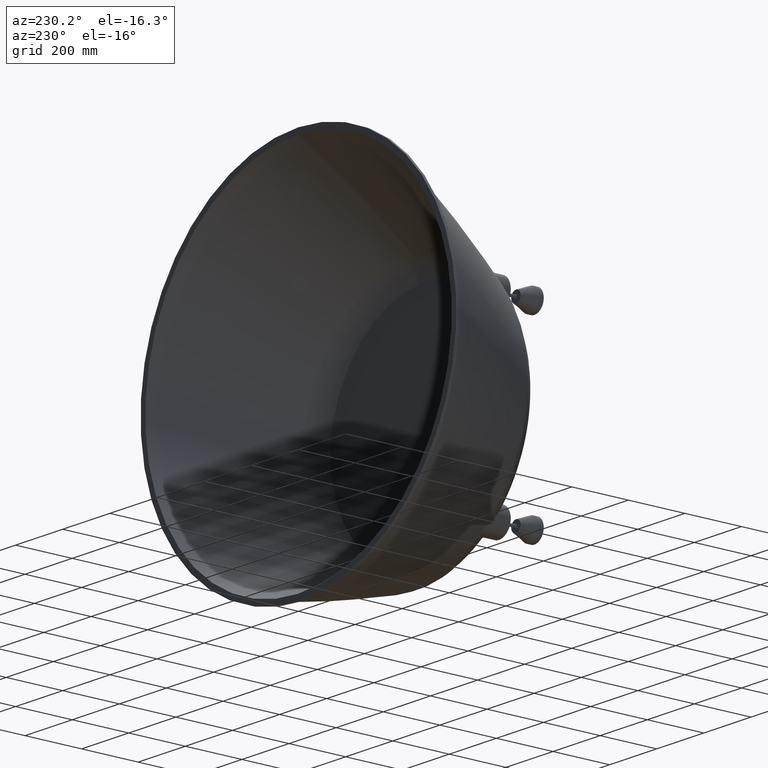
[diagram: clean part render]
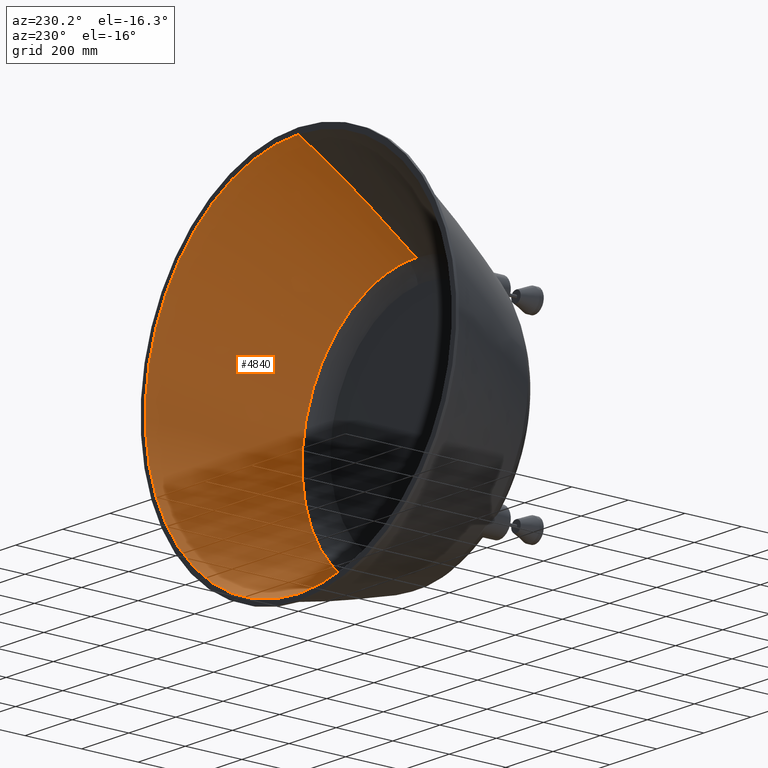
[diagram: same view with one face highlighted and labeled with its STEP entity id]
A machine part, auxiliary view. The second image highlights one B-rep face of the part: STEP entity #4840.
In plain terms, the highlighted face is a freeform B-spline surface patch.
Its self-contained STEP definition (entity closure, byte-faithful):
#9 = CARTESIAN_POINT ( 'NONE',  ( 75.55401159520484100, -448.0000000000002842, 349.1449361360746479 ) ) ;
#86 = CARTESIAN_POINT ( 'NONE',  ( 54.89922253436169797, -300.7692957005252765, -586.5767234422390857 ) ) ;
#91 = CARTESIAN_POINT ( 'NONE',  ( 200.9626641094572506, -414.7621243600074763, 333.9137167701668432 ) ) ;
#107 = CARTESIAN_POINT ( 'NONE',  ( 147.7677614811208286, -449.4251270861810212, 329.4859349013391352 ) ) ;
#184 = CARTESIAN_POINT ( 'NONE',  ( -16.72038621686909465, -448.0000000000000000, -545.0000000000000000 ) ) ;
#189 = CARTESIAN_POINT ( 'NONE',  ( 333.9212063440318161, -412.3513201346082724, 240.5492125994066726 ) ) ;
#201 = CARTESIAN_POINT ( 'NONE',  ( 215.2321094602335165, -450.8483620015460929, 298.4738117609578580 ) ) ;
#272 = CARTESIAN_POINT ( 'NONE',  ( -38.07773191009615488, -447.9999999999999432, 353.9200374917178351 ) ) ;
#274 = CARTESIAN_POINT ( 'NONE',  ( -100.2578514670822045, -449.4706133416476632, -534.2217406050142472 ) ) ;
#294 = CARTESIAN_POINT ( 'NONE',  ( 276.6095782864115904, -452.2692919088275403, 256.9126122102927070 ) ) ;
#369 = CARTESIAN_POINT ( 'NONE',  ( -2.628106066104862748E-15, -449.4260330346314163, 353.9172374052683949 ) ) ;
#388 = CARTESIAN_POINT ( 'NONE',  ( 509.8682860148626901, 0.0000000000000000000, 404.8794334345980133 ) ) ;
#410 = CARTESIAN_POINT ( 'NONE',  ( -488.0609152808975750, -304.7725897908640036, -266.9315287643098600 ) ) ;
#449 = CIRCLE ( 'NONE', #7937, 650.0000000000000000 ) ;
#479 = CARTESIAN_POINT ( 'NONE',  ( 515.0539131061140097, -155.8904678790308935, 259.7246585093960789 ) ) ;
#499 = CARTESIAN_POINT ( 'NONE',  ( -448.2721453903623683, -448.0000000000000000, -143.5177982449098977 ) ) ;
#536 = CARTESIAN_POINT ( 'NONE',  ( 424.9243149689107213, -409.9984812157820784, 112.8464094912524160 ) ) ;
#569 = CARTESIAN_POINT ( 'NONE',  ( 486.5436324143377078, -305.9310914458260982, 136.1435274006154827 ) ) ;
#588 = CARTESIAN_POINT ( 'NONE',  ( -447.4313368352266025, -449.4205721655192178, -46.60211758991746223 ) ) ;
#614 = CARTESIAN_POINT ( 'NONE',  ( -196.2725809836268525, -450.9292168010246087, -500.0094828336945056 ) ) ;
#626 = CARTESIAN_POINT ( 'NONE',  ( 469.0762998197972706, -407.5994653331799213, -37.55261318857412078 ) ) ;
#659 = CARTESIAN_POINT ( 'NONE',  ( 429.9985363275443433, -447.9999999999998295, 39.70912441698371254 ) ) ;
#678 = CARTESIAN_POINT ( 'NONE',  ( -435.2521340601776387, -450.8403231425078275, 13.37772379767682907 ) ) ;
#710 = CARTESIAN_POINT ( 'NONE',  ( -282.2963447818172540, -452.3684196813504741, -444.7959806876519906 ) ) ;
#725 = CARTESIAN_POINT ( 'NONE',  ( 460.8573535547873803, -403.7506264420871389, -194.0678452407429120 ) ) ;
#761 = CARTESIAN_POINT ( 'NONE',  ( 442.3381901622735768, -449.4201615712539137, -15.34489130150268466 ) ) ;
#782 = CARTESIAN_POINT ( 'NONE',  ( -413.6979914406838361, -452.2611899774288986, 76.92420615005556783 ) ) ;
#816 = CARTESIAN_POINT ( 'NONE',  ( -407.6564837294363883, 0.0000000000000000000, -507.5650561402102880 ) ) ;
#830 = CARTESIAN_POINT ( 'NONE',  ( 390.6264772991576706, -398.9126733810954875, -354.8109336253318133 ) ) ;
#861 = CARTESIAN_POINT ( 'NONE',  ( 449.3149410063530240, -450.8445317337324809, -94.53788924573181873 ) ) ;
#879 = CARTESIAN_POINT ( 'NONE',  ( -625.5347409583471290, 0.0000000000000000000, 180.2613279382512985 ) ) ;
#914 = CARTESIAN_POINT ( 'NONE',  ( -470.8079807220699422, -154.0415862837319878, -393.7155452409012923 ) ) ;
#926 = CARTESIAN_POINT ( 'NONE',  ( 244.1676455285888494, -396.1264476373422099, -492.4870734741633100 ) ) ;
#956 = CARTESIAN_POINT ( 'NONE',  ( 438.2931388686110949, -452.2848124240039738, -191.5167471173367630 ) ) ;
#971 = CARTESIAN_POINT ( 'NONE',  ( -515.0539131061152602, -155.8904678790304672, 259.7246585093961357 ) ) ;
#1018 = CARTESIAN_POINT ( 'NONE',  ( 105.0401533342281937, -397.6046887701168657, -547.9169038372607474 ) ) ;
#1051 = CARTESIAN_POINT ( 'NONE',  ( 569.5426004749854201, 0.0000000000000000000, -315.4087260218079223 ) ) ;
#1066 = CARTESIAN_POINT ( 'NONE',  ( -381.5542280547866199, -305.7453146749003281, 295.0993387725044954 ) ) ;
#1139 = CARTESIAN_POINT ( 'NONE',  ( 470.8079807220709085, -154.0415862837311067, -393.7155452408998713 ) ) ;
#1154 = CARTESIAN_POINT ( 'NONE',  ( -248.2997489076936404, -448.0000000000002842, 280.9156539769772394 ) ) ;
#1155 = CARTESIAN_POINT ( 'NONE',  ( -2.066754476637886940E-15, -416.3584169623146636, 378.7792622009487786 ) ) ;
#1229 = CARTESIAN_POINT ( 'NONE',  ( 357.6745774914072058, -302.8633264554708262, -448.4165288715446991 ) ) ;
#1243 = CARTESIAN_POINT ( 'NONE',  ( -182.4057956218641436, -449.4246798458059402, 315.8105071317399393 ) ) ;
#1320 = CARTESIAN_POINT ( 'NONE',  ( 241.4950534193038152, -447.9999999999986926, -475.8646976381800187 ) ) ;
#1335 = CARTESIAN_POINT ( 'NONE',  ( -111.7574990561580393, -450.8510110406866147, 339.2452076774446823 ) ) ;
#1336 = CARTESIAN_POINT ( 'NONE',  ( 12.67511697611276311, -450.8520660692627757, 352.8344748105367330 ) ) ;
#1413 = CARTESIAN_POINT ( 'NONE',  ( 149.2384893207882897, -449.4679958032045874, -520.0855359992284548 ) ) ;
#1417 = CARTESIAN_POINT ( 'NONE',  ( 40.46390033626854432, -416.2841827379817801, 377.0594442534435871 ) ) ;
#1432 = CARTESIAN_POINT ( 'NONE',  ( 75.01756626412101525, -452.2773938402268641, 345.9669687924048844 ) ) ;
#1508 = CARTESIAN_POINT ( 'NONE',  ( 50.20241611539178450, -450.9446140859888033, -542.2648194480539132 ) ) ;
#1513 = CARTESIAN_POINT ( 'NONE',  ( 181.9992722402188008, -415.0298103134628604, 342.3861969671846168 ) ) ;
#1526 = CARTESIAN_POINT ( 'NONE',  ( 191.0283441262473332, 0.0000000000000000000, 622.4339930682964450 ) ) ;
#1600 = CARTESIAN_POINT ( 'NONE',  ( -16.67487807783501452, -452.4181529117813056, -543.6922948223000276 ) ) ;
#1606 = CARTESIAN_POINT ( 'NONE',  ( 323.0469906097904413, -412.5841204190593885, 251.0730161410741346 ) ) ;
#1620 = CARTESIAN_POINT ( 'NONE',  ( 271.0953174569036719, -155.8329463604511602, 494.4967096729971558 ) ) ;
#1692 = CARTESIAN_POINT ( 'NONE',  ( -37.81606952819737444, -452.2779614914710464, 350.6843309122695018 ) ) ;
#1694 = CARTESIAN_POINT ( 'NONE',  ( -63.64297406944596958, 0.0000000000000000000, -647.9099792330982837 ) ) ;
#1700 = CARTESIAN_POINT ( 'NONE',  ( 419.8474133424672345, -410.1628664995764098, 123.0007643459270241 ) ) ;
#1714 = CARTESIAN_POINT ( 'NONE',  ( 309.7895446008339491, -305.6352247365748553, 359.0009803681025460 ) ) ;
#1718 = CARTESIAN_POINT ( 'NONE',  ( -2.066754476637886940E-15, -416.3584169623146636, 378.7792622009487786 ) ) ;
#1784 = CARTESIAN_POINT ( 'NONE',  ( -21.27120012027734575, 0.0000000000000000000, 649.9999999999998863 ) ) ;
#1803 = CARTESIAN_POINT ( 'NONE',  ( 307.2165434172005121, -448.0000000000000000, 234.5323328455152421 ) ) ;
#1824 = CARTESIAN_POINT ( 'NONE',  ( -425.6888090947560954, -450.8645482041825971, -239.6566445021490495 ) ) ;
#1894 = CARTESIAN_POINT ( 'NONE',  ( 357.3364087406138196, -449.4215147600796172, 177.9071927600754464 ) ) ;
#1909 = B_SPLINE_SURFACE_WITH_KNOTS ( 'NONE', 3, 3, ( 
 ( #11331, #17065, #4161, #9917, #15651, #2745, #8493 ),
 ( #14234, #1336, #7086, #12831, #18567, #5670, #11424 ),
 ( #17158, #4255, #10011, #15745, #2841, #8593, #14332 ),
 ( #1432, #7179, #12927, #9, #5764, #11517, #17252 ),
 ( #4351, #10110, #15844, #2939, #8689, #14426, #1526 ),
 ( #7276, #13023, #107, #5863, #11617, #17350, #4448 ),
 ( #10203, #15938, #3034, #8782, #14521, #1620, #7373 ),
 ( #13118, #201, #5956, #11710, #17442, #4541, #10297 ),
 ( #16030, #3130, #8880, #14617, #1714, #7462, #13208 ),
 ( #294, #6048, #11801, #17533, #4634, #10392, #16126 ),
 ( #3224, #8973, #14707, #1803, #7552, #13300, #388 ),
 ( #6142, #11894, #17628, #4727, #10482, #16217, #3316 ),
 ( #9064, #14798, #1894, #7646, #13391, #479, #6233 ),
 ( #11981, #17717, #4814, #10568, #16306, #3402, #9153 ),
 ( #14888, #1986, #7735, #13477, #569, #6322, #12068 ),
 ( #17804, #4903, #10660, #16401, #3496, #9244, #14976 ),
 ( #2076, #7826, #13569, #659, #6412, #12161, #17902 ),
 ( #5001, #10753, #16493, #3587, #9337, #15068, #2171 ),
 ( #7919, #13665, #761, #6513, #12258, #17995, #5096 ),
 ( #10846, #16587, #3682, #9430, #15169, #2270, #8018 ),
 ( #13763, #861, #6611, #12358, #18091, #5191, #10941 ),
 ( #16685, #3780, #9528, #15264, #2365, #8112, #13857 ),
 ( #956, #6705, #12452, #18189, #5290, #11038, #16781 ),
 ( #3875, #9627, #15358, #2459, #8203, #13949, #1051 ),
 ( #6798, #12544, #18280, #5381, #11130, #16870, #3966 ),
 ( #9717, #15450, #2552, #8297, #14039, #1139, #6884 ),
 ( #12630, #18368, #5468, #11220, #16961, #4059, #9812 ),
 ( #15544, #2640, #8387, #14128, #1229, #6972, #12720 ),
 ( #18457, #5561, #11314, #17049, #4146, #9900, #15636 ),
 ( #2729, #8478, #14218, #1320, #7067, #12813, #18549 ),
 ( #5651, #11406, #17139, #4237, #9992, #15726, #2822 ),
 ( #8575, #14314, #1413, #7161, #12908, #18644, #5745 ),
 ( #11499, #17233, #4331, #10092, #15826, #2921, #8671 ),
 ( #14408, #1508, #7256, #13004, #86, #5843, #11599 ),
 ( #17332, #4430, #10185, #15920, #3015, #8764, #14502 ),
 ( #1600, #7352, #13101, #184, #5938, #11693, #17425 ),
 ( #4524, #10278, #16012, #3109, #8858, #14597, #1694 ),
 ( #7444, #13190, #274, #6029, #11783, #17761, #4859 ),
 ( #10614, #16353, #3450, #9200, #14932, #2030, #7780 ),
 ( #13523, #614, #6366, #12114, #17852, #4953, #10707 ),
 ( #16446, #3540, #9289, #15022, #2122, #7873, #13616 ),
 ( #710, #6467, #12212, #17949, #5051, #10801, #16542 ),
 ( #3637, #9384, #15118, #2222, #7973, #13719, #816 ),
 ( #6563, #12313, #18046, #5148, #10898, #16639, #3736 ),
 ( #9484, #15221, #2322, #8069, #13815, #914, #6663 ),
 ( #12410, #18143, #5244, #10997, #16738, #3833, #8995 ),
 ( #14730, #1824, #7573, #13320, #410, #6164, #11915 ),
 ( #17648, #4747, #10501, #16238, #3336, #9083, #14817 ),
 ( #1916, #7666, #13410, #499, #6253, #12001, #17736 ),
 ( #4833, #10589, #16325, #3424, #9173, #14907, #2005 ),
 ( #7755, #13497, #588, #6340, #12087, #17823, #4923 ),
 ( #10679, #16418, #3513, #9261, #14994, #2093, #7844 ),
 ( #13586, #678, #6433, #12179, #17919, #5018, #10770 ),
 ( #16510, #3606, #9354, #15087, #2189, #7940, #13685 ),
 ( #782, #6531, #12277, #18013, #5115, #10865, #16606 ),
 ( #3701, #9450, #15189, #2289, #8036, #13782, #879 ),
 ( #6631, #12376, #18110, #5209, #10961, #16704, #3799 ),
 ( #9547, #15282, #2383, #8127, #13873, #971, #6721 ),
 ( #12468, #18205, #5305, #11054, #16795, #3889, #9641 ),
 ( #15373, #2474, #8219, #13965, #1066, #6812, #12558 ),
 ( #18294, #5394, #11144, #16884, #3980, #9732, #15466 ),
 ( #2567, #8313, #14054, #1154, #6899, #12645, #18381 ),
 ( #5481, #11234, #16974, #4074, #9827, #15560, #2656 ),
 ( #8402, #14144, #1243, #6986, #12735, #18472, #5576 ),
 ( #11330, #17064, #4160, #9916, #15650, #2744, #8492 ),
 ( #14232, #1335, #7085, #12830, #18566, #5669, #11423 ),
 ( #17157, #4254, #10276, #16010, #3107, #8856, #14594 ),
 ( #1692, #7442, #13188, #272, #6027, #11781, #17513 ),
 ( #4612, #10370, #16106, #3203, #8953, #14688, #1784 ),
 ( #7533, #13280, #369, #6118, #11873, #17607, #4706 ) ),
 .UNSPECIFIED., .T., .F., .F.,
 ( 4, 1, 1, 1, 1, 1, 1, 1, 1, 1, 1, 1, 1, 1, 1, 1, 2, 1, 1, 1, 1, 1, 1, 1, 1, 1, 1, 1, 1, 1, 1, 1, 2, 1, 1, 1, 1, 1, 1, 1, 1, 1, 1, 1, 1, 1, 1, 1, 2, 1, 1, 1, 1, 1, 1, 1, 1, 1, 1, 1, 1, 1, 1, 1, 4 ),
 ( 4, 3, 4 ),
 ( 0.0000000000000000000, 0.01456705953685546485, 0.02913411907371092971, 0.04370117861056639630, 0.05826823814742185942, 0.07283529768427733642, 0.08740235722113279260, 0.1019694167579882488, 0.1165364762948437188, 0.1311035358316992305, 0.1456705953685546728, 0.1602376549054101706, 0.1748047144422655852, 0.1893717739791210553, 0.2039388335159764976, 0.2185058930528319676, 0.2330729525896874654, 0.2497558930528320231, 0.2664388335159765253, 0.2831217739791210830, 0.2998047144422656407, 0.3164876549054101984, 0.3331705953685546451, 0.3498535358316992028, 0.3665364762948437050, 0.3832194167579882071, 0.3999023572211327648, 0.4165852976842773225, 0.4332682381474217692, 0.4499511786105664379, 0.4666341190737109401, 0.4833170595368554423, 0.5000000000000000000, 0.5166829404631445577, 0.5333658809262891154, 0.5500488213894335621, 0.5667317618525781198, 0.5834147023157227885, 0.6000976427788672352, 0.6167805832420116818, 0.6334635237051562395, 0.6501464641683007972, 0.6668294046314453549, 0.6835123450945899126, 0.7001952855577343593, 0.7168782260208789170, 0.7335611664840234747, 0.7502441069471679214, 0.7669270474103124791, 0.7814941069471679214, 0.7960611664840233637, 0.8106282260208789170, 0.8251952855577343593, 0.8397623450945896906, 0.8543294046314453549, 0.8688964641683007972, 0.8834635237051562395, 0.8980305832420116818, 0.9125976427788671241, 0.9271647023157225664, 0.9417317618525782308, 0.9562988213894335621, 0.9708658809262891154, 0.9854329404631445577, 1.000000000000000000 ),
 ( -0.01000000000000000021, 0.0000000000000000000, 1.000000000000000000 ),
 .UNSPECIFIED. ) ;
#1916 = CARTESIAN_POINT ( 'NONE',  ( -446.0901126486299404, -452.2746502159276929, -142.9681197857567554 ) ) ;
#1986 = CARTESIAN_POINT ( 'NONE',  ( 397.8988629013040281, -450.8413781710831358, 112.6281005374373905 ) ) ;
#2005 = CARTESIAN_POINT ( 'NONE',  ( -637.2908922604444797, 0.0000000000000000000, -133.4731229111970663 ) ) ;
#2030 = CARTESIAN_POINT ( 'NONE',  ( -176.4278855060967146, -151.7177577972896927, -596.9740471817196976 ) ) ;
#2042 = CARTESIAN_POINT ( 'NONE',  ( 467.0633725915593573, -407.8728642771583850, -22.56606209454545464 ) ) ;
#2076 = CARTESIAN_POINT ( 'NONE',  ( 427.4043571198191671, -452.2606223261845457, 39.50895438341775190 ) ) ;
#2093 = CARTESIAN_POINT ( 'NONE',  ( -596.3759166529234790, -155.9150604123364872, -20.24329785373738844 ) ) ;
#2122 = CARTESIAN_POINT ( 'NONE',  ( -266.4619218350419487, -301.9394893577025414, -515.7552243029248302 ) ) ;
#2135 = CARTESIAN_POINT ( 'NONE',  ( 463.2319579460684054, -404.0694787352276194, -182.9809810433395398 ) ) ;
#2171 = CARTESIAN_POINT ( 'NONE',  ( 650.0000000000000000, 0.0000000000000000000, 19.83096566863670773 ) ) ;
#2189 = CARTESIAN_POINT ( 'NONE',  ( -516.4711765850515803, -305.9792557938438904, 46.38145886918202621 ) ) ;
#2222 = CARTESIAN_POINT ( 'NONE',  ( -321.2191397226545178, -448.0000000000009095, -411.5310116730015011 ) ) ;
#2236 = CARTESIAN_POINT ( 'NONE',  ( 402.9556387939398974, -399.4703287919227819, -335.8039730704216481 ) ) ;
#2270 = CARTESIAN_POINT ( 'NONE',  ( 596.9386086408291021, -155.8790320637092464, -60.71372436228438829 ) ) ;
#2289 = CARTESIAN_POINT ( 'NONE',  ( -399.6369956368538965, -448.0000000000000568, 113.0891873386758988 ) ) ;
#2322 = CARTESIAN_POINT ( 'NONE',  ( -383.5750766884345353, -449.4415124730699631, -331.0096049797102182 ) ) ;
#2334 = CARTESIAN_POINT ( 'NONE',  ( 296.4539034010990690, -396.4981937804243444, -455.9517152009356096 ) ) ;
#2365 = CARTESIAN_POINT ( 'NONE',  ( 521.0065701147780146, -305.5116594690798024, -161.8404135500156826 ) ) ;
#2383 = CARTESIAN_POINT ( 'NONE',  ( -357.3364087406131375, -449.4215147600786509, 177.9071927600749916 ) ) ;
#2429 = CARTESIAN_POINT ( 'NONE',  ( 148.6769181464739233, -396.8209482958334320, -535.7789847425553944 ) ) ;
#2459 = CARTESIAN_POINT ( 'NONE',  ( 426.9117915689928395, -447.9999999999988063, -240.1914461543458401 ) ) ;
#2474 = CARTESIAN_POINT ( 'NONE',  ( -305.7297897244489491, -450.8450937065013022, 233.3209927269757600 ) ) ;
#2520 = CARTESIAN_POINT ( 'NONE',  ( 7.575288338138034483, -399.4844264240052212, -559.0279223048194126 ) ) ;
#2552 = CARTESIAN_POINT ( 'NONE',  ( 383.5750766884344216, -449.4415124730674052, -331.0096049797092519 ) ) ;
#2567 = CARTESIAN_POINT ( 'NONE',  ( -246.4550550368994379, -452.2709432579030704, 278.5730941852435194 ) ) ;
#2640 = CARTESIAN_POINT ( 'NONE',  ( 320.4900309672808589, -450.9027334708887906, -410.7933013290309532 ) ) ;
#2656 = CARTESIAN_POINT ( 'NONE',  ( -367.2837493427326763, 0.0000000000000000000, 537.6153198848696775 ) ) ;
#2729 = CARTESIAN_POINT ( 'NONE',  ( 240.7460473668317036, -452.3818153192676164, -474.6679818382377221 ) ) ;
#2742 = EDGE_CURVE ( 'NONE', #11712, #11390, #16527, .T. ) ;
#2744 = CARTESIAN_POINT ( 'NONE',  ( -219.3336957277050772, -155.8248183197818832, 518.7804410479748185 ) ) ;
#2745 = CARTESIAN_POINT ( 'NONE',  ( 0.0000000000000000000, -155.8083538271450834, 561.7775119271097992 ) ) ;
#2822 = CARTESIAN_POINT ( 'NONE',  ( 246.3919959595874900, 0.0000000000000000000, -602.5773243666309327 ) ) ;
#2841 = CARTESIAN_POINT ( 'NONE',  ( 46.79981130672177869, -305.4012836176316910, 461.7769234733306689 ) ) ;
#2921 = CARTESIAN_POINT ( 'NONE',  ( 118.3870871380097327, -151.4880770747921588, -612.2513632083795301 ) ) ;
#2926 = CARTESIAN_POINT ( 'NONE',  ( 139.7886386543328570, -415.5516574704561776, 357.8776876055437697 ) ) ;
#2939 = CARTESIAN_POINT ( 'NONE',  ( 112.3009953386047499, -448.0000000000005116, 341.2994071188377916 ) ) ;
#3015 = CARTESIAN_POINT ( 'NONE',  ( 18.23732418467190541, -300.7282362739581458, -588.5901725900022257 ) ) ;
#3021 = CARTESIAN_POINT ( 'NONE',  ( 273.8637558082499481, -413.5589615132724362, 291.5870732304118746 ) ) ;
#3034 = CARTESIAN_POINT ( 'NONE',  ( 182.4057956218639447, -449.4246798458063381, 315.8105071317403372 ) ) ;
#3107 = CARTESIAN_POINT ( 'NONE',  ( -93.43552263133300073, -305.4202053257811258, 455.0771809250644537 ) ) ;
#3109 = CARTESIAN_POINT ( 'NONE',  ( -50.29451035890107846, -448.0000000000011369, -543.1336803106858042 ) ) ;
#3115 = CARTESIAN_POINT ( 'NONE',  ( 409.0398494956050399, -410.4918763901798116, 142.8498494815198683 ) ) ;
#3130 = CARTESIAN_POINT ( 'NONE',  ( 247.0699529938306966, -450.8472955052683346, 279.3539474491545889 ) ) ;
#3203 = CARTESIAN_POINT ( 'NONE',  ( -12.73204467905424053, -448.0000000000000568, 355.0000000000000000 ) ) ;
#3224 = CARTESIAN_POINT ( 'NONE',  ( 304.9864128780728834, -452.2676405597529765, 232.7153226677055500 ) ) ;
#3295 = DIRECTION ( 'NONE',  ( 0.0000000000000000000, 0.0000000000000000000, 1.000000000000000000 ) ) ;
#3316 = CARTESIAN_POINT ( 'NONE',  ( 547.3786534451859325, 0.0000000000000000000, 352.4894360264868851 ) ) ;
#3336 = CARTESIAN_POINT ( 'NONE',  ( -507.4436328007265615, -305.1729191998983879, -215.0789797806885986 ) ) ;
#3402 = CARTESIAN_POINT ( 'NONE',  ( 541.0195949799303889, -155.8985959196996873, 210.0183811655067814 ) ) ;
#3424 = CARTESIAN_POINT ( 'NONE',  ( -450.8695543134203376, -447.9999999999998863, -94.79850329582173174 ) ) ;
#3450 = CARTESIAN_POINT ( 'NONE',  ( -149.2384893207885170, -449.4679958032068043, -520.0855359992306148 ) ) ;
#3462 = CARTESIAN_POINT ( 'NONE',  ( 460.8574815407990855, -408.4109869952940812, 10.63973219643512813 ) ) ;
#3496 = CARTESIAN_POINT ( 'NONE',  ( 503.5202572933015404, -305.9603340856937734, 91.84234595592910466 ) ) ;
#3513 = CARTESIAN_POINT ( 'NONE',  ( -442.3381901622736336, -449.4201615712539137, -15.34489130150297420 ) ) ;
#3540 = CARTESIAN_POINT ( 'NONE',  ( -240.9957160509903531, -450.9212102128474271, -475.0668871048843585 ) ) ;
#3552 = CARTESIAN_POINT ( 'NONE',  ( 467.1693177216968706, -404.6930910827269940, -160.7652515551147303 ) ) ;
#3587 = CARTESIAN_POINT ( 'NONE',  ( 436.9595597065187462, -448.0000000000000000, 13.41970389881408643 ) ) ;
#3606 = CARTESIAN_POINT ( 'NONE',  ( -428.2690835223949080, -450.8404148841229926, 39.57567772793954930 ) ) ;
#3637 = CARTESIAN_POINT ( 'NONE',  ( -320.1254765895919832, -452.3541002063366818, -410.4244461570452245 ) ) ;
#3650 = CARTESIAN_POINT ( 'NONE',  ( 418.1634473432791879, -400.2525800936965084, -309.7521837127029585 ) ) ;
#3682 = CARTESIAN_POINT ( 'NONE',  ( 447.4313368352266025, -449.4205721655188768, -46.60211758991707853 ) ) ;
#3701 = CARTESIAN_POINT ( 'NONE',  ( -397.0297965335293497, -452.2620672566251869, 112.3975571368177100 ) ) ;
#3736 = CARTESIAN_POINT ( 'NONE',  ( -454.6319647508737489, 0.0000000000000000000, -465.9688128235391673 ) ) ;
#3750 = CARTESIAN_POINT ( 'NONE',  ( 308.1174537296599283, -396.6606875674823414, -446.3233399042188125 ) ) ;
#3780 = CARTESIAN_POINT ( 'NONE',  ( 446.8174568958747841, -450.8497668106174956, -143.1513459388065428 ) ) ;
#3799 = CARTESIAN_POINT ( 'NONE',  ( -605.3661770270974785, 0.0000000000000000000, 239.4804124803707737 ) ) ;
#3833 = CARTESIAN_POINT ( 'NONE',  ( -505.9420254011923817, -154.4604158365205251, -344.5505082490937525 ) ) ;
#3846 = CARTESIAN_POINT ( 'NONE',  ( 162.9748656975362167, -396.6252206427415672, -530.7929790410012174 ) ) ;
#3871 = ORIENTED_EDGE ( 'NONE', *, *, #2742, .F. ) ;
#3875 = CARTESIAN_POINT ( 'NONE',  ( 425.0773178576358191, -452.2968223062728157, -239.3892436760469309 ) ) ;
#3889 = CARTESIAN_POINT ( 'NONE',  ( -484.4045654999351882, -155.8814019875149484, 307.2569634152087588 ) ) ;
#3935 = CARTESIAN_POINT ( 'NONE',  ( 37.75782548414476736, -399.0977723238402177, -557.6712887712108113 ) ) ;
#3962 = ORIENTED_EDGE ( 'NONE', *, *, #4864, .T. ) ;
#3966 = CARTESIAN_POINT ( 'NONE',  ( 535.9679410536019759, 0.0000000000000000000, -369.5710464090264509 ) ) ;
#3980 = CARTESIAN_POINT ( 'NONE',  ( -347.0620376259014392, -305.6902697057377623, 328.6138230459750957 ) ) ;
#4059 = CARTESIAN_POINT ( 'NONE',  ( 430.8925771026697475, -153.6092461002080825, -439.2034181332703042 ) ) ;
#4074 = CARTESIAN_POINT ( 'NONE',  ( -216.3068915204238749, -448.0000000000001137, 300.1895636414517412 ) ) ;
#4146 = CARTESIAN_POINT ( 'NONE',  ( 313.8139884283032188, -302.3860106216247345, -484.4557853661223703 ) ) ;
#4160 = CARTESIAN_POINT ( 'NONE',  ( -147.7677614811210276, -449.4251270861801686, 329.4859349013385668 ) ) ;
#4161 = CARTESIAN_POINT ( 'NONE',  ( -2.628106066104862748E-15, -449.4260330346314163, 353.9172374052683949 ) ) ;
#4164 = VERTEX_POINT ( 'NONE', #1718 ) ;
#4237 = CARTESIAN_POINT ( 'NONE',  ( 196.6638843423931462, -448.0000000000014779, -500.8311364829465333 ) ) ;
#4253 = CARTESIAN_POINT ( 'NONE',  ( 1.734723475976807094E-15, 0.0000000000000000000, 649.9999999999998863 ) ) ;
#4254 = CARTESIAN_POINT ( 'NONE',  ( -75.19638137448237103, -450.8515958934841592, 347.0262912402945972 ) ) ;
#4255 = CARTESIAN_POINT ( 'NONE',  ( 37.90329032216367722, -450.8519743276474401, 351.7628997720856319 ) ) ;
#4331 = CARTESIAN_POINT ( 'NONE',  ( 100.2578514670811529, -449.4706133416495391, -534.2217406050156114 ) ) ;
#4337 = CARTESIAN_POINT ( 'NONE',  ( 74.20050738742514795, -416.1170345169687153, 372.9790016529494210 ) ) ;
#4351 = CARTESIAN_POINT ( 'NONE',  ( 111.4857509149344423, -452.2765165610309737, 338.2181079567488382 ) ) ;
#4430 = CARTESIAN_POINT ( 'NONE',  ( 16.69004745751315255, -450.9454352745208325, -544.1281965481999805 ) ) ;
#4435 = CARTESIAN_POINT ( 'NONE',  ( 223.0066530034055461, -414.4320375956098133, 323.1080548818190437 ) ) ;
#4448 = CARTESIAN_POINT ( 'NONE',  ( 252.4282263204670187, 0.0000000000000000000, 600.1708000495751776 ) ) ;
#4514 = EDGE_CURVE ( 'NONE', #4164, #7649, #7752, .T. ) ;
#4524 = CARTESIAN_POINT ( 'NONE',  ( -50.15636899363725831, -452.4169211289852797, -541.8303890167392183 ) ) ;
#4529 = CARTESIAN_POINT ( 'NONE',  ( 371.4563197887646879, -411.4915049975148236, 198.6210851873574086 ) ) ;
#4541 = CARTESIAN_POINT ( 'NONE',  ( 320.4721280092511506, -155.8420122519664233, 465.3188309794367683 ) ) ;
#4612 = CARTESIAN_POINT ( 'NONE',  ( -12.64665312464200930, -452.2780991038940783, 351.7517122158051279 ) ) ;
#4634 = CARTESIAN_POINT ( 'NONE',  ( 347.0620376259012119, -305.6902697057378759, 328.6138230459742999 ) ) ;
#4706 = CARTESIAN_POINT ( 'NONE',  ( 3.469446951953614189E-15, 0.0000000000000000000, 649.9999999999998863 ) ) ;
#4725 = ORIENTED_EDGE ( 'NONE', *, *, #4514, .F. ) ;
#4727 = CARTESIAN_POINT ( 'NONE',  ( 333.7795930674677152, -448.0000000000003979, 207.6072614606963498 ) ) ;
#4747 = CARTESIAN_POINT ( 'NONE',  ( -438.9645028873695196, -450.8565416160026302, -191.7455066577564082 ) ) ;
#4814 = CARTESIAN_POINT ( 'NONE',  ( 379.3274098797340343, -449.4210675197049341, 146.4614606689840457 ) ) ;
#4833 = CARTESIAN_POINT ( 'NONE',  ( -448.5376343528202483, -452.2667976005964192, -94.40758222068630801 ) ) ;
#4840 = ADVANCED_FACE ( 'NONE', ( #5577 ), #1909, .F. ) ;
#4859 = CARTESIAN_POINT ( 'NONE',  ( -126.2000799214837201, 0.0000000000000000000, -638.6705996701845152 ) ) ;
#4864 = EDGE_CURVE ( 'NONE', #6236, #11390, #449, .T. ) ;
#4872 = CARTESIAN_POINT ( 'NONE',  ( 449.0832793978870541, -409.0759174235211617, 53.86260226463287637 ) ) ;
#4903 = CARTESIAN_POINT ( 'NONE',  ( 414.5700522742030785, -450.8407933182855913, 77.06904245885039018 ) ) ;
#4923 = CARTESIAN_POINT ( 'NONE',  ( -647.6199912463108603, 0.0000000000000000000, -67.71891637787742013 ) ) ;
#4953 = CARTESIAN_POINT ( 'NONE',  ( -232.8633438816513035, -152.0149916734613669, -575.8986879580251070 ) ) ;
#4965 = CARTESIAN_POINT ( 'NONE',  ( 472.4871681033924347, -406.4121012442290635, -93.78112369483257282 ) ) ;
#5001 = CARTESIAN_POINT ( 'NONE',  ( 434.3984212370068008, -452.2604847137617412, 13.35673374710869865 ) ) ;
#5018 = CARTESIAN_POINT ( 'NONE',  ( -593.6873330801115571, -155.9150604123364872, 17.67586030227359117 ) ) ;
#5051 = CARTESIAN_POINT ( 'NONE',  ( -313.8139884283033894, -302.3860106216234840, -484.4557853661220861 ) ) ;
#5064 = CARTESIAN_POINT ( 'NONE',  ( 442.7701935809391216, -401.9237925638930733, -255.2667675227818904 ) ) ;
#5096 = CARTESIAN_POINT ( 'NONE',  ( 650.0000000000000000, 0.0000000000000000000, -22.71143457191810100 ) ) ;
#5115 = CARTESIAN_POINT ( 'NONE',  ( -503.5202572933030751, -305.9603340856939440, 91.84234595592928940 ) ) ;
#5148 = CARTESIAN_POINT ( 'NONE',  ( -354.9816060928836237, -447.9999999999990905, -373.1285812098044516 ) ) ;
#5162 = CARTESIAN_POINT ( 'NONE',  ( 338.4804571789802026, -397.2302029564317536, -418.3468013745108465 ) ) ;
#5191 = CARTESIAN_POINT ( 'NONE',  ( 591.0823894485120036, -155.7304151256235230, -120.8294949005863401 ) ) ;
#5209 = CARTESIAN_POINT ( 'NONE',  ( -380.1823859758966364, -448.0000000000001705, 146.7831927259130964 ) ) ;
#5244 = CARTESIAN_POINT ( 'NONE',  ( -407.5689269664918584, -449.4367393147300618, -286.4991066295124824 ) ) ;
#5258 = CARTESIAN_POINT ( 'NONE',  ( 173.5747530047660803, -396.4973564846063709, -526.8158654076761422 ) ) ;
#5290 = CARTESIAN_POINT ( 'NONE',  ( 507.4436328007266752, -305.1729191998985584, -215.0789797806896217 ) ) ;
#5305 = CARTESIAN_POINT ( 'NONE',  ( -332.9875626366356869, -449.4220136051110330, 207.0956564185118793 ) ) ;
#5329 = CARTESIAN_POINT ( 'NONE',  ( 3.929153840726595460E-14, -399.4844348525556939, -559.0279199252469198 ) ) ;
#5352 = CARTESIAN_POINT ( 'NONE',  ( 71.52164811671163136, -398.3583986021245096, -553.8736682298957703 ) ) ;
#5381 = CARTESIAN_POINT ( 'NONE',  ( 408.1184765910010697, -448.0000000000018758, -286.7990189047613399 ) ) ;
#5382 = CARTESIAN_POINT ( 'NONE',  ( 9.128923127632238204E-15, -134.7153245086824995, -626.5046943989384545 ) ) ;
#5394 = CARTESIAN_POINT ( 'NONE',  ( -277.2935827460184441, -450.8461946058852732, 257.6087404708336521 ) ) ;
#5468 = CARTESIAN_POINT ( 'NONE',  ( 354.5565247822655124, -449.4464396042589556, -372.7787933578377420 ) ) ;
#5481 = CARTESIAN_POINT ( 'NONE',  ( -214.6947184301385221, -452.2725430023191961, 297.6159358207107175 ) ) ;
#5482 = CARTESIAN_POINT ( 'NONE',  ( 30.57441597406217326, -416.3168589706214107, 377.8296582089409981 ) ) ;
#5561 = CARTESIAN_POINT ( 'NONE',  ( 282.6023413220740963, -450.9122797875688207, -445.1810273350150169 ) ) ;
#5576 = CARTESIAN_POINT ( 'NONE',  ( -311.4185308141290989, 0.0000000000000000000, 571.7931481836359353 ) ) ;
#5577 = FACE_OUTER_BOUND ( 'NONE', #17047, .T. ) ;
#5627 = EDGE_CURVE ( 'NONE', #7649, #11712, #12700, .T. ) ;
#5651 = CARTESIAN_POINT ( 'NONE',  ( 196.0769293042434356, -452.3938252015414037, -499.5986560090708508 ) ) ;
#5668 = CARTESIAN_POINT ( 'NONE',  ( -2.066754476637886940E-15, -416.3584169623146636, 378.7792622009487786 ) ) ;
#5669 = CARTESIAN_POINT ( 'NONE',  ( -165.7466137214471189, -155.8179407469082207, 537.9007015932116929 ) ) ;
#5670 = CARTESIAN_POINT ( 'NONE',  ( 18.42481497320300576, -155.8083538271450834, 561.7775119271097992 ) ) ;
#5745 = CARTESIAN_POINT ( 'NONE',  ( 187.2679545042498432, 0.0000000000000000000, -623.4925855828533940 ) ) ;
#5750 = CARTESIAN_POINT ( 'NONE',  ( 55.51724694664828519, -416.2197521549895214, 375.5115302541161668 ) ) ;
#5764 = CARTESIAN_POINT ( 'NONE',  ( 93.43552263133285862, -305.4202053257817511, 455.0771809250641695 ) ) ;
#5843 = CARTESIAN_POINT ( 'NONE',  ( 59.35168672041925220, -151.3394601367052701, -621.5262997812526464 ) ) ;
#5849 = CARTESIAN_POINT ( 'NONE',  ( 202.6748998691641077, -414.7370601070478529, 333.1045757867363477 ) ) ;
#5863 = CARTESIAN_POINT ( 'NONE',  ( 148.1316383600414497, -448.0000000000005116, 330.4681803716333093 ) ) ;
#5938 = CARTESIAN_POINT ( 'NONE',  ( -18.23732418467190541, -300.7282362739581458, -588.5901725900022257 ) ) ;
#5944 = CARTESIAN_POINT ( 'NONE',  ( 341.8652604119466787, -412.1773590601182491, 232.4833663069385921 ) ) ;
#5956 = CARTESIAN_POINT ( 'NONE',  ( 215.7695004903286531, -449.4241810007731033, 299.3316877012048849 ) ) ;
#6027 = CARTESIAN_POINT ( 'NONE',  ( -46.79981130672182843, -305.4012836176314067, 461.7769234733301573 ) ) ;
#6029 = CARTESIAN_POINT ( 'NONE',  ( -100.3518907928099964, -447.9999999999988631, -534.6506668376409834 ) ) ;
#6048 = CARTESIAN_POINT ( 'NONE',  ( 277.2935827460182736, -450.8461946058849321, 257.6087404708333111 ) ) ;
#6118 = CARTESIAN_POINT ( 'NONE',  ( -2.602085213965210642E-15, -448.0000000000000568, 355.0000000000000000 ) ) ;
#6142 = CARTESIAN_POINT ( 'NONE',  ( 331.4035017749712893, -452.2660408153371350, 206.0724463341428532 ) ) ;
#6164 = CARTESIAN_POINT ( 'NONE',  ( -535.8860840097578375, -154.8522241278394631, -292.1733356019246912 ) ) ;
#6233 = CARTESIAN_POINT ( 'NONE',  ( 579.2798049138980332, 0.0000000000000000000, 297.1233587038651649 ) ) ;
#6236 = VERTEX_POINT ( 'NONE', #7129 ) ;
#6253 = CARTESIAN_POINT ( 'NONE',  ( -521.0065701147772188, -305.5116594690804845, -161.8404135500164500 ) ) ;
#6290 = CARTESIAN_POINT ( 'NONE',  ( 425.7472639562143399, -409.9711561264218176, 111.1453909044751498 ) ) ;
#6322 = CARTESIAN_POINT ( 'NONE',  ( 562.1450163727106428, -155.9054734925731509, 158.6703389473062202 ) ) ;
#6340 = CARTESIAN_POINT ( 'NONE',  ( -448.2501704923089960, -447.9999999999996021, -46.67174655390881810 ) ) ;
#6366 = CARTESIAN_POINT ( 'NONE',  ( -196.4682326630100704, -449.4646084005112812, -500.4203096583197521 ) ) ;
#6379 = CARTESIAN_POINT ( 'NONE',  ( 470.3114493557891365, -407.3825316845785665, -48.82719211807338411 ) ) ;
#6412 = CARTESIAN_POINT ( 'NONE',  ( 516.4711765850520351, -305.9792557938438335, 46.38145886918217542 ) ) ;
#6433 = CARTESIAN_POINT ( 'NONE',  ( -436.1058468833483062, -449.4201615712539137, 13.39871384824529521 ) ) ;
#6467 = CARTESIAN_POINT ( 'NONE',  ( -282.6023413220743805, -450.9122797875667743, -445.1810273350157559 ) ) ;
#6480 = CARTESIAN_POINT ( 'NONE',  ( 460.4361055696124936, -403.6970849881052459, -195.9146289215645425 ) ) ;
#6513 = CARTESIAN_POINT ( 'NONE',  ( 443.1772951181014264, -448.0000000000000000, -15.36893017945309481 ) ) ;
#6531 = CARTESIAN_POINT ( 'NONE',  ( -414.5700522742043859, -450.8407933182858756, 77.06904245885046123 ) ) ;
#6563 = CARTESIAN_POINT ( 'NONE',  ( -353.7063621610288919, -452.3393188127705571, -372.0792176539046068 ) ) ;
#6579 = CARTESIAN_POINT ( 'NONE',  ( 377.5786927987198851, -398.3895268180130529, -373.1765743226901009 ) ) ;
#6611 = CARTESIAN_POINT ( 'NONE',  ( 450.0922476598864250, -449.4222658668669510, -94.66819627077694577 ) ) ;
#6631 = CARTESIAN_POINT ( 'NONE',  ( -377.6174576874054196, -452.2632025591143474, 145.8179965551238979 ) ) ;
#6663 = CARTESIAN_POINT ( 'NONE',  ( -497.5334231689139415, 0.0000000000000000000, -419.8642757947074529 ) ) ;
#6675 = CARTESIAN_POINT ( 'NONE',  ( 231.2315342238338474, -396.1238387233023559, -499.9438298179729259 ) ) ;
#6705 = CARTESIAN_POINT ( 'NONE',  ( 438.9645028873694628, -450.8565416160029713, -191.7455066577576588 ) ) ;
#6721 = CARTESIAN_POINT ( 'NONE',  ( -579.2798049139003069, 0.0000000000000000000, 297.1233587038651649 ) ) ;
#6769 = CARTESIAN_POINT ( 'NONE',  ( 86.46185338871931947, -398.0171456711673272, -551.4248189205128483 ) ) ;
#6798 = CARTESIAN_POINT ( 'NONE',  ( 406.4698277174746295, -452.3102179441937096, -285.8992820790173255 ) ) ;
#6812 = CARTESIAN_POINT ( 'NONE',  ( -449.2965032883819276, -155.8717108621022192, 352.0841013649137494 ) ) ;
#6884 = CARTESIAN_POINT ( 'NONE',  ( 497.5334231689143962, 0.0000000000000000000, -419.8642757947056339 ) ) ;
#6899 = CARTESIAN_POINT ( 'NONE',  ( -309.7895446008345743, -305.6352247365747985, 359.0009803681016933 ) ) ;
#6900 = CARTESIAN_POINT ( 'NONE',  ( 6.106093185547721625, -416.3584168854220025, 378.7792622581422393 ) ) ;
#6972 = CARTESIAN_POINT ( 'NONE',  ( 386.6388399498175659, -153.1769059166826992, -480.5598067074210462 ) ) ;
#6986 = CARTESIAN_POINT ( 'NONE',  ( -182.8588958792606149, -447.9999999999998295, 316.7359858260871874 ) ) ;
#7067 = CARTESIAN_POINT ( 'NONE',  ( 266.4619218350410392, -301.9394893577007224, -515.7552243029251713 ) ) ;
#7085 = CARTESIAN_POINT ( 'NONE',  ( -112.0292471973814656, -449.4255055203431084, 340.2723073981410380 ) ) ;
#7086 = CARTESIAN_POINT ( 'NONE',  ( 12.70358082758350804, -449.4260330346314163, 353.9172374052683949 ) ) ;
#7129 = CARTESIAN_POINT ( 'NONE',  ( 1.734723475976807094E-15, 0.0000000000000000000, 649.9999999999998863 ) ) ;
#7161 = CARTESIAN_POINT ( 'NONE',  ( 149.3823193679629924, -447.9999999999993747, -520.5064211479833602 ) ) ;
#7165 = CARTESIAN_POINT ( 'NONE',  ( 44.22730762826208917, -416.2699311785073064, 376.7210297373583217 ) ) ;
#7179 = CARTESIAN_POINT ( 'NONE',  ( 75.19638137448228576, -450.8515958934846708, 347.0262912402948245 ) ) ;
#7256 = CARTESIAN_POINT ( 'NONE',  ( 50.24846323714639595, -449.4723070429940890, -542.6992498793695177 ) ) ;
#7261 = CARTESIAN_POINT ( 'NONE',  ( 192.3698203204457968, -414.8856552786434690, 337.8611168674226519 ) ) ;
#7276 = CARTESIAN_POINT ( 'NONE',  ( 147.0400077232796150, -452.2753812585420974, 327.5214439607507870 ) ) ;
#7352 = CARTESIAN_POINT ( 'NONE',  ( -16.69004745751304242, -450.9454352745208325, -544.1281965481999805 ) ) ;
#7358 = CARTESIAN_POINT ( 'NONE',  ( 325.7937825490838009, -412.5259846712327771, 248.4780202110812013 ) ) ;
#7373 = CARTESIAN_POINT ( 'NONE',  ( 311.4185308141304063, 0.0000000000000000000, 571.7931481836375269 ) ) ;
#7442 = CARTESIAN_POINT ( 'NONE',  ( -37.90329032216363458, -450.8519743276473264, 351.7628997720856319 ) ) ;
#7444 = CARTESIAN_POINT ( 'NONE',  ( -100.0697728156266066, -452.4118400249453202, -533.3638881397608884 ) ) ;
#7462 = CARTESIAN_POINT ( 'NONE',  ( 366.9399777790677604, -155.8517033773791809, 431.5840301837682205 ) ) ;
#7533 = CARTESIAN_POINT ( 'NONE',  ( -2.680147770384166566E-15, -452.2780991038940783, 351.7517122158051279 ) ) ;
#7552 = CARTESIAN_POINT ( 'NONE',  ( 381.5542280547857672, -305.7453146749011239, 295.0993387725051207 ) ) ;
#7573 = CARTESIAN_POINT ( 'NONE',  ( -426.3003003318751212, -449.4322741020912417, -239.9240453282486669 ) ) ;
#7646 = CARTESIAN_POINT ( 'NONE',  ( 358.1657295199012765, -448.0000000000004547, 178.3233827603748409 ) ) ;
#7649 = VERTEX_POINT ( 'NONE', #11803 ) ;
#7666 = CARTESIAN_POINT ( 'NONE',  ( -446.8174568958741020, -450.8497668106184619, -143.1513459388077933 ) ) ;
#7703 = CARTESIAN_POINT ( 'NONE',  ( 422.4108417970384721, -410.0806438456668275, 117.9371902315870102 ) ) ;
#7735 = CARTESIAN_POINT ( 'NONE',  ( 398.7679292690788770, -449.4206890855414258, 112.8586439380567867 ) ) ;
#7752 = B_SPLINE_CURVE_WITH_KNOTS ( 'NONE', 3,
 ( #1155, #6900, #12646, #18382, #5482, #11236 ),
 .UNSPECIFIED., .F., .F.,
 ( 4, 2, 4 ),
 ( 1.490659800728648232, 1.509158752625246569, 1.527657704521844906 ),
 .UNSPECIFIED. ) ;
#7755 = CARTESIAN_POINT ( 'NONE',  ( -445.7936695210619291, -452.2617164965584493, -46.46285966193473627 ) ) ;
#7780 = CARTESIAN_POINT ( 'NONE',  ( -187.2679545042499569, 0.0000000000000000000, -623.4925855828535077 ) ) ;
#7792 = CARTESIAN_POINT ( 'NONE',  ( 467.6111451772162013, -407.8066924731008953, -26.29812385602543401 ) ) ;
#7826 = CARTESIAN_POINT ( 'NONE',  ( 428.2690835223942258, -450.8404148841229926, 39.57567772793974115 ) ) ;
#7844 = CARTESIAN_POINT ( 'NONE',  ( -649.9999999999998863, 0.0000000000000000000, -22.71143457191826798 ) ) ;
#7873 = CARTESIAN_POINT ( 'NONE',  ( -287.0895174700359576, -152.3662680725759060, -549.2661856455162024 ) ) ;
#7886 = CARTESIAN_POINT ( 'NONE',  ( 462.0738870427373399, -403.9105147640059954, -188.5259243157883304 ) ) ;
#7919 = CARTESIAN_POINT ( 'NONE',  ( 440.6599802506179344, -452.2604847137617412, -15.29681354560186612 ) ) ;
#7937 = AXIS2_PLACEMENT_3D ( 'NONE', #10461, #16194, #3295 ) ;
#7940 = CARTESIAN_POINT ( 'NONE',  ( -589.5363640926722155, -155.9142267671396098, 53.13732836267883641 ) ) ;
#7973 = CARTESIAN_POINT ( 'NONE',  ( -357.6745774914058984, -302.8633264554725883, -448.4165288715444717 ) ) ;
#7987 = CARTESIAN_POINT ( 'NONE',  ( 400.9510597064507920, -399.3749426960488904, -339.0212096757380209 ) ) ;
#8018 = CARTESIAN_POINT ( 'NONE',  ( 647.6199912463107466, 0.0000000000000000000, -67.71891637787702223 ) ) ;
#8036 = CARTESIAN_POINT ( 'NONE',  ( -486.5436324143379352, -305.9310914458263255, 136.1435274006151701 ) ) ;
#8069 = CARTESIAN_POINT ( 'NONE',  ( -384.0620990455905712, -448.0000000000009095, -331.3366778844636542 ) ) ;
#8081 = CARTESIAN_POINT ( 'NONE',  ( 281.5935070601851180, -396.3219685970822184, -467.6292951878371582 ) ) ;
#8112 = CARTESIAN_POINT ( 'NONE',  ( 578.7712849747879318, -155.5007344031254775, -179.7948152027088327 ) ) ;
#8127 = CARTESIAN_POINT ( 'NONE',  ( -358.1657295199005375, -447.9999999999994316, 178.3233827603744146 ) ) ;
#8173 = CARTESIAN_POINT ( 'NONE',  ( 141.4718332264745015, -396.9334496958119871, -538.0669605939824578 ) ) ;
#8203 = CARTESIAN_POINT ( 'NONE',  ( 488.0609152808966655, -304.7725897908633215, -266.9315287643086094 ) ) ;
#8219 = CARTESIAN_POINT ( 'NONE',  ( -306.4731665708248443, -449.4225468532503101, 233.9266627862456573 ) ) ;
#8265 = CARTESIAN_POINT ( 'NONE',  ( 3.929153840726595460E-14, -399.4844348525556939, -559.0279199252469198 ) ) ;
#8297 = CARTESIAN_POINT ( 'NONE',  ( 384.0620990455904575, -447.9999999999983515, -331.3366778844626879 ) ) ;
#8313 = CARTESIAN_POINT ( 'NONE',  ( -247.0699529938308388, -450.8472955052687894, 279.3539474491547594 ) ) ;
#8387 = CARTESIAN_POINT ( 'NONE',  ( 320.8545853449683705, -449.4513667354435142, -411.1621565010163977 ) ) ;
#8402 = CARTESIAN_POINT ( 'NONE',  ( -181.4995951070712579, -452.2740395374180480, 313.9595497430453293 ) ) ;
#8478 = CARTESIAN_POINT ( 'NONE',  ( 240.9957160509890741, -450.9212102128446418, -475.0668871048851543 ) ) ;
#8492 = CARTESIAN_POINT ( 'NONE',  ( -252.4282263204688945, 0.0000000000000000000, 600.1708000495773376 ) ) ;
#8493 = CARTESIAN_POINT ( 'NONE',  ( 3.469446951953614189E-15, 0.0000000000000000000, 649.9999999999998863 ) ) ;
#8575 = CARTESIAN_POINT ( 'NONE',  ( 148.9508292264389127, -452.4039874096148992, -519.2437657017186439 ) ) ;
#8593 = CARTESIAN_POINT ( 'NONE',  ( 55.44559001021968214, -155.8091874723419608, 559.9424379634041316 ) ) ;
#8671 = CARTESIAN_POINT ( 'NONE',  ( 126.2000799214839617, 0.0000000000000000000, -638.6705996701880395 ) ) ;
#8676 = CARTESIAN_POINT ( 'NONE',  ( 154.0034571489781854, -415.3891508429286432, 353.2317320256448738 ) ) ;
#8689 = CARTESIAN_POINT ( 'NONE',  ( 139.4758094609485397, -305.4494479656498811, 444.0093791884708025 ) ) ;
#8764 = CARTESIAN_POINT ( 'NONE',  ( 19.75426215247465933, -151.3034317880784840, -623.6116111413800809 ) ) ;
#8769 = CARTESIAN_POINT ( 'NONE',  ( 297.6789920015520465, -413.1047053768288038, 273.4916567596897607 ) ) ;
#8782 = CARTESIAN_POINT ( 'NONE',  ( 182.8588958792604160, -448.0000000000002842, 316.7359858260876422 ) ) ;
#8856 = CARTESIAN_POINT ( 'NONE',  ( -110.9193546424626362, -155.8126262587786073, 551.6616879706925829 ) ) ;
#8858 = CARTESIAN_POINT ( 'NONE',  ( -54.89922253436183297, -300.7692957005264702, -586.5767234422390857 ) ) ;
#8866 = CARTESIAN_POINT ( 'NONE',  ( 412.7526076935311607, -410.3821169880808384, 136.3141412355251703 ) ) ;
#8880 = CARTESIAN_POINT ( 'NONE',  ( 247.6848509507620975, -449.4236477526340536, 280.1348007130658289 ) ) ;
#8953 = CARTESIAN_POINT ( 'NONE',  ( -15.57842982612860716, -305.3966965368679780, 463.2762594731629520 ) ) ;
#8973 = CARTESIAN_POINT ( 'NONE',  ( 305.7297897244487785, -450.8450937065019843, 233.3209927269754473 ) ) ;
#8995 = CARTESIAN_POINT ( 'NONE',  ( -535.9679410536026580, 0.0000000000000000000, -369.5710464090265077 ) ) ;
#9064 = CARTESIAN_POINT ( 'NONE',  ( 355.6777671820389628, -452.2645442802379989, 177.0748127594766288 ) ) ;
#9083 = CARTESIAN_POINT ( 'NONE',  ( -560.2734033887943497, -155.2035005269531212, -237.0875040578602864 ) ) ;
#9153 = CARTESIAN_POINT ( 'NONE',  ( 605.3661770270986153, 0.0000000000000000000, 239.4804124803712853 ) ) ;
#9173 = CARTESIAN_POINT ( 'NONE',  ( -528.6002196667578801, -305.7734133134486569, -107.8292058003353588 ) ) ;
#9200 = CARTESIAN_POINT ( 'NONE',  ( -149.3823193679631913, -448.0000000000015916, -520.5064211479855203 ) ) ;
#9212 = CARTESIAN_POINT ( 'NONE',  ( 463.9277150210187983, -408.1807115507428989, -4.024703393715507893 ) ) ;
#9244 = CARTESIAN_POINT ( 'NONE',  ( 578.3306153901248763, -155.9107879807026791, 106.2076096915103989 ) ) ;
#9261 = CARTESIAN_POINT ( 'NONE',  ( -443.1772951181014832, -448.0000000000000000, -15.36893017945338258 ) ) ;
#9289 = CARTESIAN_POINT ( 'NONE',  ( -241.2453847351477236, -449.4606051064244525, -475.4657923715317906 ) ) ;
#9301 = CARTESIAN_POINT ( 'NONE',  ( 465.9951831183245190, -404.4877842021016363, -168.1776546477286445 ) ) ;
#9337 = CARTESIAN_POINT ( 'NONE',  ( 522.3308420235842959, -305.9838428746075465, 15.51870895566037767 ) ) ;
#9354 = CARTESIAN_POINT ( 'NONE',  ( -429.1338099249699667, -449.4202074420614395, 39.64240107246153855 ) ) ;
#9384 = CARTESIAN_POINT ( 'NONE',  ( -320.4900309672794947, -450.9027334708914623, -410.7933013290306121 ) ) ;
#9399 = CARTESIAN_POINT ( 'NONE',  ( 408.7921257252365308, -399.7605410083088486, -326.0892952586142997 ) ) ;
#9430 = CARTESIAN_POINT ( 'NONE',  ( 448.2501704923089960, -447.9999999999992610, -46.67174655390844862 ) ) ;
#9450 = CARTESIAN_POINT ( 'NONE',  ( -397.8988629013041987, -450.8413781710834769, 112.6281005374371063 ) ) ;
#9484 = CARTESIAN_POINT ( 'NONE',  ( -382.6010319741224635, -452.3245374192080703, -330.3554591702033463 ) ) ;
#9497 = CARTESIAN_POINT ( 'NONE',  ( 305.2368196910920233, -396.6175075423587941, -448.7603134173132275 ) ) ;
#9528 = CARTESIAN_POINT ( 'NONE',  ( 447.5448011431188888, -449.4248834053082646, -143.3345720918576376 ) ) ;
#9547 = CARTESIAN_POINT ( 'NONE',  ( -355.6777671820382238, -452.2645442802369757, 177.0748127594761741 ) ) ;
#9596 = CARTESIAN_POINT ( 'NONE',  ( 159.4135372397081198, -396.6719286010378482, -532.0682431950951923 ) ) ;
#9627 = CARTESIAN_POINT ( 'NONE',  ( 425.6888090947547880, -450.8645482041814603, -239.6566445021465768 ) ) ;
#9641 = CARTESIAN_POINT ( 'NONE',  ( -547.3786534451836587, 0.0000000000000000000, 352.4894360264877946 ) ) ;
#9686 = CARTESIAN_POINT ( 'NONE',  ( 30.22682954189231452, -399.2355889117139327, -558.1807279953998204 ) ) ;
#9717 = CARTESIAN_POINT ( 'NONE',  ( 382.6010319741223498, -452.3245374192055124, -330.3554591702024368 ) ) ;
#9732 = CARTESIAN_POINT ( 'NONE',  ( -410.0216495179985827, -155.8617071197408279, 393.6898403589759141 ) ) ;
#9812 = CARTESIAN_POINT ( 'NONE',  ( 454.6319647508753405, 0.0000000000000000000, -465.9688128235366094 ) ) ;
#9827 = CARTESIAN_POINT ( 'NONE',  ( -270.0459945299363653, -305.5818999226979713, 385.9771576661510153 ) ) ;
#9900 = CARTESIAN_POINT ( 'NONE',  ( 338.5327049685048451, -152.7580763638946166, -517.3760047992598174 ) ) ;
#9916 = CARTESIAN_POINT ( 'NONE',  ( -148.1316383600416486, -447.9999999999996021, 330.4681803716327408 ) ) ;
#9917 = CARTESIAN_POINT ( 'NONE',  ( -2.602085213965210642E-15, -448.0000000000000568, 355.0000000000000000 ) ) ;
#9992 = CARTESIAN_POINT ( 'NONE',  ( 216.2290522807157060, -301.5391599486687255, -541.9138189454705525 ) ) ;
#10011 = CARTESIAN_POINT ( 'NONE',  ( 37.99051111612993026, -449.4259871638237769, 352.8414686319017619 ) ) ;
#10092 = CARTESIAN_POINT ( 'NONE',  ( 100.3518907928089448, -448.0000000000007390, -534.6506668376422340 ) ) ;
#10097 = CARTESIAN_POINT ( 'NONE',  ( 96.38310699132344439, -415.9642274211379913, 369.0904693776183763 ) ) ;
#10110 = CARTESIAN_POINT ( 'NONE',  ( 111.7574990561578829, -450.8510110406874674, 339.2452076774451371 ) ) ;
#10185 = CARTESIAN_POINT ( 'NONE',  ( 16.70521683719118045, -449.4727176372604163, -544.5640982741000471 ) ) ;
#10190 = CARTESIAN_POINT ( 'NONE',  ( 236.1243906094883869, -414.2194113261813300, 315.8117019619012353 ) ) ;
#10203 = CARTESIAN_POINT ( 'NONE',  ( 181.4995951070710589, -452.2740395374185027, 313.9595497430457840 ) ) ;
#10276 = CARTESIAN_POINT ( 'NONE',  ( -75.37519648484364154, -449.4257979467419659, 348.0856136881845373 ) ) ;
#10278 = CARTESIAN_POINT ( 'NONE',  ( -50.20241611539186266, -450.9446140859905654, -542.2648194480547090 ) ) ;
#10284 = CARTESIAN_POINT ( 'NONE',  ( 389.1774163769018173, -411.0435721528218664, 174.5782209932836224 ) ) ;
#10297 = CARTESIAN_POINT ( 'NONE',  ( 367.2837493427319941, 0.0000000000000000000, 537.6153198848678585 ) ) ;
#10370 = CARTESIAN_POINT ( 'NONE',  ( -12.67511697611275245, -450.8520660692627757, 352.8344748105367330 ) ) ;
#10392 = CARTESIAN_POINT ( 'NONE',  ( 410.0216495179982417, -155.8617071197408563, 393.6898403589748909 ) ) ;
#10395 = ORIENTED_EDGE ( 'NONE', *, *, #14041, .T. ) ;
#10461 = CARTESIAN_POINT ( 'NONE',  ( 0.0000000000000000000, 0.0000000000000000000, 0.0000000000000000000 ) ) ;
#10482 = CARTESIAN_POINT ( 'NONE',  ( 412.9826361506809462, -305.7986394887780079, 258.7677656791470326 ) ) ;
#10501 = CARTESIAN_POINT ( 'NONE',  ( -439.6358669061279443, -449.4282708080016278, -191.9742661981773040 ) ) ;
#10568 = CARTESIAN_POINT ( 'NONE',  ( 380.1823859758977733, -448.0000000000002274, 146.7831927259137785 ) ) ;
#10589 = CARTESIAN_POINT ( 'NONE',  ( -449.3149410063535925, -450.8445317337308893, -94.53788924573144925 ) ) ;
#10614 = CARTESIAN_POINT ( 'NONE',  ( -148.9508292264391116, -452.4039874096171161, -519.2437657017206902 ) ) ;
#10626 = CARTESIAN_POINT ( 'NONE',  ( 453.5185918527586182, -408.8585019732742580, 39.60844333818822349 ) ) ;
#10660 = CARTESIAN_POINT ( 'NONE',  ( 415.4421131077236851, -449.4203966591425115, 77.21387876764528357 ) ) ;
#10679 = CARTESIAN_POINT ( 'NONE',  ( -440.6599802506179913, -452.2604847137617412, -15.29681354560215922 ) ) ;
#10707 = CARTESIAN_POINT ( 'NONE',  ( -246.3919959595879732, 0.0000000000000000000, -602.5773243666345707 ) ) ;
#10720 = CARTESIAN_POINT ( 'NONE',  ( 471.4050677828221865, -405.6828137320006817, -123.6184461856084624 ) ) ;
#10753 = CARTESIAN_POINT ( 'NONE',  ( 435.2521340601774114, -450.8403231425078275, 13.37772379767716124 ) ) ;
#10770 = CARTESIAN_POINT ( 'NONE',  ( -649.9999999999998863, 0.0000000000000000000, 19.83096566863650878 ) ) ;
#10801 = CARTESIAN_POINT ( 'NONE',  ( -338.5327049685041629, -152.7580763638939914, -517.3760047992585669 ) ) ;
#10814 = CARTESIAN_POINT ( 'NONE',  ( 437.2837717878422836, -401.4971906845869398, -269.1610064130678666 ) ) ;
#10846 = CARTESIAN_POINT ( 'NONE',  ( 445.7936695210619291, -452.2617164965581082, -46.46285966193434547 ) ) ;
#10865 = CARTESIAN_POINT ( 'NONE',  ( -578.3306153901268090, -155.9107879807027359, 106.2076096915104415 ) ) ;
#10898 = CARTESIAN_POINT ( 'NONE',  ( -397.4897371547093599, -303.3560395742821925, -408.1073664064671220 ) ) ;
#10911 = CARTESIAN_POINT ( 'NONE',  ( 322.2137626862144657, -396.8988305539288604, -433.8673451339496410 ) ) ;
#10941 = CARTESIAN_POINT ( 'NONE',  ( 637.2908922604443660, 0.0000000000000000000, -133.4731229111964410 ) ) ;
#10961 = CARTESIAN_POINT ( 'NONE',  ( -465.6799955922736558, -305.8932480295267169, 178.9563984188874031 ) ) ;
#10997 = CARTESIAN_POINT ( 'NONE',  ( -408.1184765910007286, -447.9999999999994316, -286.7990189047604872 ) ) ;
#11009 = CARTESIAN_POINT ( 'NONE',  ( 170.0582296262660691, -396.5375306599888745, -528.1717492214363574 ) ) ;
#11038 = CARTESIAN_POINT ( 'NONE',  ( 560.2734033887951455, -155.2035005269532348, -237.0875040578608264 ) ) ;
#11054 = CARTESIAN_POINT ( 'NONE',  ( -333.7795930674678289, -447.9999999999988063, 207.6072614606963782 ) ) ;
#11101 = CARTESIAN_POINT ( 'NONE',  ( 60.29176466093612419, -398.6162585785824604, -555.4381174330309250 ) ) ;
#11130 = CARTESIAN_POINT ( 'NONE',  ( 463.0734390418849671, -304.3260685269430041, -316.7902464295612504 ) ) ;
#11131 = CARTESIAN_POINT ( 'NONE',  ( 8.143438439573234390E-14, 0.0000000000000000000, -650.0000000000000000 ) ) ;
#11144 = CARTESIAN_POINT ( 'NONE',  ( -277.9775872056251274, -449.4230973029426650, 258.3048687313742562 ) ) ;
#11220 = CARTESIAN_POINT ( 'NONE',  ( 354.9816060928837373, -448.0000000000017621, -373.1285812098043380 ) ) ;
#11234 = CARTESIAN_POINT ( 'NONE',  ( -215.2321094602336302, -450.8483620015461497, 298.4738117609577444 ) ) ;
#11236 = CARTESIAN_POINT ( 'NONE',  ( 36.70259749386149650, -416.2966106060288212, 377.3523824728662817 ) ) ;
#11314 = CARTESIAN_POINT ( 'NONE',  ( 282.9083378623312228, -449.4561398937850072, -445.5660739823787821 ) ) ;
#11330 = CARTESIAN_POINT ( 'NONE',  ( -147.0400077232797855, -452.2753812585412447, 327.5214439607501618 ) ) ;
#11331 = CARTESIAN_POINT ( 'NONE',  ( -2.680147770384166566E-15, -452.2780991038940783, 351.7517122158051279 ) ) ;
#11390 = VERTEX_POINT ( 'NONE', #15210 ) ;
#11406 = CARTESIAN_POINT ( 'NONE',  ( 196.2725809836266819, -450.9292168010280761, -500.0094828336960404 ) ) ;
#11422 = CARTESIAN_POINT ( 'NONE',  ( 1.884315301478955331E-17, -283.3146502194812228, 477.7388221445886529 ) ) ;
#11423 = CARTESIAN_POINT ( 'NONE',  ( -191.0283441262463668, 0.0000000000000000000, 622.4339930682957629 ) ) ;
#11424 = CARTESIAN_POINT ( 'NONE',  ( 21.27120012027737772, 0.0000000000000000000, 649.9999999999998863 ) ) ;
#11499 = CARTESIAN_POINT ( 'NONE',  ( 100.0697728156255550, -452.4118400249471961, -533.3638881397622526 ) ) ;
#11503 = CARTESIAN_POINT ( 'NONE',  ( 57.39326393592767062, -416.2104829197822937, 375.2858067284326467 ) ) ;
#11517 = CARTESIAN_POINT ( 'NONE',  ( 110.9193546424624373, -155.8126262587789199, 551.6616879706917871 ) ) ;
#11599 = CARTESIAN_POINT ( 'NONE',  ( 63.64297406944610458, 0.0000000000000000000, -647.9099792330998753 ) ) ;
#11604 = CARTESIAN_POINT ( 'NONE',  ( 206.0841700015159006, -414.6866715002137198, 331.4683618128980243 ) ) ;
#11617 = CARTESIAN_POINT ( 'NONE',  ( 184.5193262521037809, -305.4872913819495466, 428.6927274010519682 ) ) ;
#11693 = CARTESIAN_POINT ( 'NONE',  ( -19.75426215247465933, -151.3034317880784840, -623.6116111413800809 ) ) ;
#11698 = CARTESIAN_POINT ( 'NONE',  ( 347.0140027209033065, -412.0620305407161936, 226.9983600156105581 ) ) ;
#11710 = CARTESIAN_POINT ( 'NONE',  ( 216.3068915204237612, -448.0000000000000568, 300.1895636414519117 ) ) ;
#11712 = VERTEX_POINT ( 'NONE', #5329 ) ;
#11781 = CARTESIAN_POINT ( 'NONE',  ( -55.44559001021981715, -155.8091874723418471, 559.9424379634031084 ) ) ;
#11783 = CARTESIAN_POINT ( 'NONE',  ( -109.7558233655894782, -300.9386658351161827, -577.5432901003066490 ) ) ;
#11801 = CARTESIAN_POINT ( 'NONE',  ( 277.9775872056250137, -449.4230973029423239, 258.3048687313739151 ) ) ;
#11803 = CARTESIAN_POINT ( 'NONE',  ( 36.70259749386149650, -416.2966106060288212, 377.3523824728662817 ) ) ;
#11873 = CARTESIAN_POINT ( 'NONE',  ( 0.0000000000000000000, -305.3966965368679780, 463.2762594731629520 ) ) ;
#11894 = CARTESIAN_POINT ( 'NONE',  ( 332.1955322058034312, -450.8440272102248514, 206.5840513763273520 ) ) ;
#11915 = CARTESIAN_POINT ( 'NONE',  ( -569.5426004749856475, 0.0000000000000000000, -315.4087260218075812 ) ) ;
#11981 = CARTESIAN_POINT ( 'NONE',  ( 377.6174576874064996, -452.2632025591144043, 145.8179965551245800 ) ) ;
#12001 = CARTESIAN_POINT ( 'NONE',  ( -578.7712849747869086, -155.5007344031258185, -179.7948152027094011 ) ) ;
#12037 = CARTESIAN_POINT ( 'NONE',  ( 433.0551139395853966, -409.7255685637584861, 95.80654170808514891 ) ) ;
#12068 = CARTESIAN_POINT ( 'NONE',  ( 625.5347409583465605, 0.0000000000000000000, 180.2613279382522364 ) ) ;
#12087 = CARTESIAN_POINT ( 'NONE',  ( -530.1335362005428351, -305.9427834480397337, -53.63464295304511609 ) ) ;
#12114 = CARTESIAN_POINT ( 'NONE',  ( -196.6638843423933167, -447.9999999999979536, -500.8311364829449985 ) ) ;
#12126 = CARTESIAN_POINT ( 'NONE',  ( 470.9481386202409112, -407.2307821656390843, -56.33382148211980933 ) ) ;
#12161 = CARTESIAN_POINT ( 'NONE',  ( 589.5363640926736934, -155.9142267671396098, 53.13732836267924853 ) ) ;
#12179 = CARTESIAN_POINT ( 'NONE',  ( -436.9595597065189736, -448.0000000000000000, 13.41970389881376136 ) ) ;
#12212 = CARTESIAN_POINT ( 'NONE',  ( -282.9083378623315639, -449.4561398937830177, -445.5660739823795211 ) ) ;
#12225 = CARTESIAN_POINT ( 'NONE',  ( 456.5496510741243696, -403.2150720472540115, -212.4840971545183947 ) ) ;
#12258 = CARTESIAN_POINT ( 'NONE',  ( 527.0877907008834882, -305.9838428746075465, -17.77281797449401424 ) ) ;
#12277 = CARTESIAN_POINT ( 'NONE',  ( -415.4421131077249925, -449.4203966591427957, 77.21387876764535463 ) ) ;
#12313 = CARTESIAN_POINT ( 'NONE',  ( -354.1314434716471737, -450.8928792085134205, -372.4290055058712028 ) ) ;
#12327 = CARTESIAN_POINT ( 'NONE',  ( 368.3370021081585719, -398.0678523883202047, -384.9401147496208182 ) ) ;
#12358 = CARTESIAN_POINT ( 'NONE',  ( 450.8695543134197692, -448.0000000000014779, -94.79850329582208701 ) ) ;
#12376 = CARTESIAN_POINT ( 'NONE',  ( -378.4724337835691585, -450.8421350394096407, 146.1397286120536307 ) ) ;
#12410 = CARTESIAN_POINT ( 'NONE',  ( -406.4698277174742316, -452.3102179441912654, -285.8992820790164728 ) ) ;
#12422 = CARTESIAN_POINT ( 'NONE',  ( 204.6714187645970071, -396.2168878046384179, -513.6195926398627307 ) ) ;
#12452 = CARTESIAN_POINT ( 'NONE',  ( 439.6358669061278874, -449.4282708080019688, -191.9742661981785545 ) ) ;
#12468 = CARTESIAN_POINT ( 'NONE',  ( -331.4035017749714029, -452.2660408153354865, 206.0724463341428816 ) ) ;
#12515 = CARTESIAN_POINT ( 'NONE',  ( 82.73290389713608306, -398.1015166960793863, -552.0823354792904638 ) ) ;
#12544 = CARTESIAN_POINT ( 'NONE',  ( 407.0193773419834429, -450.8734786294630794, -286.1991943542653303 ) ) ;
#12545 = CARTESIAN_POINT ( 'NONE',  ( 3.929153840726595460E-14, -399.4844348525556939, -559.0279199252469198 ) ) ;
#12558 = CARTESIAN_POINT ( 'NONE',  ( -509.8682860148649070, 0.0000000000000000000, 404.8794334345952279 ) ) ;
#12630 = CARTESIAN_POINT ( 'NONE',  ( 353.7063621610290056, -452.3393188127732856, -372.0792176539045499 ) ) ;
#12645 = CARTESIAN_POINT ( 'NONE',  ( -366.9399777790687835, -155.8517033773791525, 431.5840301837660036 ) ) ;
#12646 = CARTESIAN_POINT ( 'NONE',  ( 12.21765804812583944, -416.3530674173460397, 378.6610458187288373 ) ) ;
#12700 = B_SPLINE_CURVE_WITH_KNOTS ( 'NONE', 3,
 ( #14318, #1417, #7165, #12913, #18648, #5750, #11503, #17237, #4337, #10097, #15831, #2926, #8676, #14413, #1513, #7261, #13010, #91, #5849, #11604, #17337, #4435, #10190, #15925, #3021, #8769, #14507, #1606, #7358, #13106, #189, #5944, #11698, #17430, #4529, #10284, #16017, #3115, #8866, #14603, #1700, #7703, #13446, #536, #6290, #12037, #17773, #4872, #10626, #16366, #3462, #9212, #14944, #2042, #7792, #13535, #626, #6379, #12126, #17866, #4965, #10720, #16458, #3552, #9301, #15034, #2135, #7886, #13629, #725, #6480, #12225, #17963, #5064, #10814, #16555, #3650, #9399, #15132, #2236, #7987, #13733, #830, #6579, #12327, #18062, #5162, #10911, #16653, #3750, #9497, #15233, #2334, #8081, #13828, #926, #6675, #12422, #18156, #5258, #11009, #16751, #3846, #9596, #15328, #2429, #8173, #13919, #1018, #6769, #12515, #18252, #5352, #11101, #16840, #3935, #9686, #15419, #2520, #8265 ),
 .UNSPECIFIED., .F., .F.,
 ( 4, 2, 2, 2, 2, 2, 2, 2, 2, 2, 2, 2, 2, 2, 2, 2, 2, 2, 2, 2, 2, 2, 2, 2, 2, 2, 2, 2, 2, 2, 2, 2, 2, 2, 2, 2, 2, 2, 2, 2, 2, 2, 2, 2, 2, 2, 2, 2, 2, 2, 2, 2, 2, 2, 2, 2, 2, 2, 2, 4 ),
 ( 1.527657704521844906, 1.539011833006032504, 1.544688897248126302, 1.550365961490220101, 1.573074218458595297, 1.618490732395345688, 1.663907246332096079, 1.686615503300471275, 1.697969631784659095, 1.703646696026752894, 1.709323760268846693, 1.754740274205597306, 1.800156788142347697, 1.845573302079098310, 1.856927430563285908, 1.868281559047473506, 1.890989816015848701, 1.936406329952598870, 1.981822843889349262, 2.004531100857724457, 2.015885229341912055, 2.021562293584005854, 2.027239357826099209, 2.072655871762849156, 2.118072385699599103, 2.140780642667974298, 2.163488899636349050, 2.174843028120536648, 2.186197156604723801, 2.208905413573098997, 2.254321927509848944, 2.299738441446598891, 2.322446698414974087, 2.333800826899161240, 2.339477891141255039, 2.345154955383348838, 2.390571469320099229, 2.435987983256849176, 2.481404497193599568, 2.492758625677787165, 2.504112754161974763, 2.526821011130349959, 2.572237525067100350, 2.617654039003851185, 2.640362295972226825, 2.651716424456414423, 2.663070552940602020, 2.708487066877352856, 2.753903580814103691, 2.799320094750854970, 2.810674223235042568, 2.816351287477136367, 2.822028351719230610, 2.844736608687606250, 2.890153122624357529, 2.901507251108545571, 2.912861379592733613, 2.935569636561109697, 2.958277893529485336, 2.980986150497860976 ),
 .UNSPECIFIED. ) ;
#12720 = CARTESIAN_POINT ( 'NONE',  ( 407.6564837294378663, 0.0000000000000000000, -507.5650561402101744 ) ) ;
#12735 = CARTESIAN_POINT ( 'NONE',  ( -228.1689216189056992, -305.5320154193937014, 409.2838552608155283 ) ) ;
#12813 = CARTESIAN_POINT ( 'NONE',  ( 287.0895174700357302, -152.3662680725749965, -549.2661856455158613 ) ) ;
#12830 = CARTESIAN_POINT ( 'NONE',  ( -112.3009953386049062, -447.9999999999996021, 341.2994071188373368 ) ) ;
#12831 = CARTESIAN_POINT ( 'NONE',  ( 12.73204467905425119, -448.0000000000000568, 355.0000000000000000 ) ) ;
#12908 = CARTESIAN_POINT ( 'NONE',  ( 163.7653240854329795, -301.2004196794848099, -562.5949360234822052 ) ) ;
#12913 = CARTESIAN_POINT ( 'NONE',  ( 49.87560652522196847, -416.2459118552429800, 376.1445126637592011 ) ) ;
#12927 = CARTESIAN_POINT ( 'NONE',  ( 75.37519648484355628, -449.4257979467424775, 348.0856136881847647 ) ) ;
#13004 = CARTESIAN_POINT ( 'NONE',  ( 50.29451035890100030, -447.9999999999993179, -543.1336803106850084 ) ) ;
#13010 = CARTESIAN_POINT ( 'NONE',  ( 195.8143995931957022, -414.8367357687487242, 336.3088109824759044 ) ) ;
#13023 = CARTESIAN_POINT ( 'NONE',  ( 147.4038846022002076, -450.8502541723615877, 328.5036894310449611 ) ) ;
#13101 = CARTESIAN_POINT ( 'NONE',  ( -16.70521683719106676, -449.4727176372604163, -544.5640982741000471 ) ) ;
#13106 = CARTESIAN_POINT ( 'NONE',  ( 331.2349770210456086, -412.4094939368200698, 243.2121967157474387 ) ) ;
#13118 = CARTESIAN_POINT ( 'NONE',  ( 214.6947184301384084, -452.2725430023191393, 297.6159358207108880 ) ) ;
#13188 = CARTESIAN_POINT ( 'NONE',  ( -37.99051111612989473, -449.4259871638236632, 352.8414686319017619 ) ) ;
#13190 = CARTESIAN_POINT ( 'NONE',  ( -100.1638121413543985, -450.9412266832965202, -533.7928143723876246 ) ) ;
#13208 = CARTESIAN_POINT ( 'NONE',  ( 419.3611755829438152, 0.0000000000000000000, 498.0534501256333897 ) ) ;
#13280 = CARTESIAN_POINT ( 'NONE',  ( -2.654126918244514460E-15, -450.8520660692627757, 352.8344748105367330 ) ) ;
#13300 = CARTESIAN_POINT ( 'NONE',  ( 449.2965032883803360, -155.8717108621026171, 352.0841013649153979 ) ) ;
#13320 = CARTESIAN_POINT ( 'NONE',  ( -426.9117915689940901, -447.9999999999998863, -240.1914461543482560 ) ) ;
#13391 = CARTESIAN_POINT ( 'NONE',  ( 441.0978074486421292, -305.8485239920820504, 219.9423827903146957 ) ) ;
#13410 = CARTESIAN_POINT ( 'NONE',  ( -447.5448011431182067, -449.4248834053092310, -143.3345720918588597 ) ) ;
#13446 = CARTESIAN_POINT ( 'NONE',  ( 423.2563604649672016, -410.0532173090912238, 116.2418128591143471 ) ) ;
#13477 = CARTESIAN_POINT ( 'NONE',  ( 399.6369956368537260, -447.9999999999997158, 113.0891873386761972 ) ) ;
#13497 = CARTESIAN_POINT ( 'NONE',  ( -446.6125031781442658, -450.8411443310388336, -46.53248862592609925 ) ) ;
#13523 = CARTESIAN_POINT ( 'NONE',  ( -196.0769293042436061, -452.3938252015379362, -499.5986560090692592 ) ) ;
#13535 = CARTESIAN_POINT ( 'NONE',  ( 468.6173884874239093, -407.6700400932627986, -33.78903193596462984 ) ) ;
#13569 = CARTESIAN_POINT ( 'NONE',  ( 429.1338099249692846, -449.4202074420613826, 39.64240107246172329 ) ) ;
#13586 = CARTESIAN_POINT ( 'NONE',  ( -434.3984212370070281, -452.2604847137617412, 13.35673374710836292 ) ) ;
#13616 = CARTESIAN_POINT ( 'NONE',  ( -303.1176024293405931, 0.0000000000000000000, -576.1262034170572406 ) ) ;
#13629 = CARTESIAN_POINT ( 'NONE',  ( 461.6762009942744953, -403.8573370268994154, -190.3736356952811946 ) ) ;
#13665 = CARTESIAN_POINT ( 'NONE',  ( 441.4990852064457840, -450.8403231425078275, -15.32085242355227628 ) ) ;
#13685 = CARTESIAN_POINT ( 'NONE',  ( -648.1834625533799681, 0.0000000000000000000, 59.80726856376040956 ) ) ;
#13719 = CARTESIAN_POINT ( 'NONE',  ( -386.6388399498157469, -153.1769059166835802, -480.5598067074209894 ) ) ;
#13733 = CARTESIAN_POINT ( 'NONE',  ( 394.8397671150582369, -399.0938319350368033, -348.5688393282674156 ) ) ;
#13763 = CARTESIAN_POINT ( 'NONE',  ( 448.5376343528196799, -452.2667976005979540, -94.40758222068669170 ) ) ;
#13782 = CARTESIAN_POINT ( 'NONE',  ( -562.1450163727110976, -155.9054734925732077, 158.6703389473056802 ) ) ;
#13815 = CARTESIAN_POINT ( 'NONE',  ( -432.7643347611961531, -303.8487526930943545, -364.0439683598062288 ) ) ;
#13828 = CARTESIAN_POINT ( 'NONE',  ( 269.3482622050818804, -396.2257451667205714, -476.3291404649290257 ) ) ;
#13857 = CARTESIAN_POINT ( 'NONE',  ( 620.5836478249798347, 0.0000000000000000000, -196.9594591069096055 ) ) ;
#13873 = CARTESIAN_POINT ( 'NONE',  ( -441.0978074486423566, -305.8485239920812546, 219.9423827903146105 ) ) ;
#13919 = CARTESIAN_POINT ( 'NONE',  ( 119.7210806202845816, -397.3066672713547973, -544.4006391796525577 ) ) ;
#13949 = CARTESIAN_POINT ( 'NONE',  ( 535.8860840097578375, -154.8522241278391220, -292.1733356019242933 ) ) ;
#13965 = CARTESIAN_POINT ( 'NONE',  ( -307.2165434172007394, -447.9999999999992610, 234.5323328455155547 ) ) ;
#14039 = CARTESIAN_POINT ( 'NONE',  ( 432.7643347611962668, -303.8487526930925924, -364.0439683598051488 ) ) ;
#14041 = EDGE_CURVE ( 'NONE', #4164, #6236, #15142, .T. ) ;
#14054 = CARTESIAN_POINT ( 'NONE',  ( -247.6848509507622396, -449.4236477526345652, 280.1348007130659994 ) ) ;
#14128 = CARTESIAN_POINT ( 'NONE',  ( 321.2191397226558820, -447.9999999999982379, -411.5310116730018422 ) ) ;
#14144 = CARTESIAN_POINT ( 'NONE',  ( -181.9526953644677008, -450.8493596916119941, 314.8850284373926343 ) ) ;
#14218 = CARTESIAN_POINT ( 'NONE',  ( 241.2453847351464447, -449.4606051064216672, -475.4657923715325865 ) ) ;
#14232 = CARTESIAN_POINT ( 'NONE',  ( -111.4857509149345987, -452.2765165610300642, 338.2181079567483835 ) ) ;
#14234 = CARTESIAN_POINT ( 'NONE',  ( 12.64665312464201996, -452.2780991038940783, 351.7517122158051279 ) ) ;
#14314 = CARTESIAN_POINT ( 'NONE',  ( 149.0946592736135869, -450.9359916064097433, -519.6646508504735493 ) ) ;
#14318 = CARTESIAN_POINT ( 'NONE',  ( 36.70259749386149650, -416.2966106060288212, 377.3523824728662817 ) ) ;
#14332 = CARTESIAN_POINT ( 'NONE',  ( 64.00771918522735859, 0.0000000000000000000, 647.9092351716167286 ) ) ;
#14408 = CARTESIAN_POINT ( 'NONE',  ( 50.15636899363718015, -452.4169211289835175, -541.8303890167384225 ) ) ;
#14413 = CARTESIAN_POINT ( 'NONE',  ( 175.0365164821714359, -415.1224814896057183, 345.2272157995594171 ) ) ;
#14426 = CARTESIAN_POINT ( 'NONE',  ( 165.7466137214476873, -155.8179407469086755, 537.9007015932123750 ) ) ;
#14502 = CARTESIAN_POINT ( 'NONE',  ( 21.27120012027749851, 0.0000000000000000000, -650.0000000000000000 ) ) ;
#14507 = CARTESIAN_POINT ( 'NONE',  ( 309.1834618676273863, -412.8742495901855705, 263.8604498111674275 ) ) ;
#14521 = CARTESIAN_POINT ( 'NONE',  ( 228.1689216189060119, -305.5320154193943836, 409.2838552608162672 ) ) ;
#14594 = CARTESIAN_POINT ( 'NONE',  ( -127.9677067505643464, 0.0000000000000000000, 638.3777199713043728 ) ) ;
#14597 = CARTESIAN_POINT ( 'NONE',  ( -59.35168672041931615, -151.3394601367058385, -621.5262997812517369 ) ) ;
#14603 = CARTESIAN_POINT ( 'NONE',  ( 418.1012819321327925, -410.2176591003548083, 126.3492797729798838 ) ) ;
#14617 = CARTESIAN_POINT ( 'NONE',  ( 248.2997489076934983, -447.9999999999997726, 280.9156539769771257 ) ) ;
#14688 = CARTESIAN_POINT ( 'NONE',  ( -18.42481497320297379, -155.8083538271450834, 561.7775119271097992 ) ) ;
#14707 = CARTESIAN_POINT ( 'NONE',  ( 306.4731665708246169, -449.4225468532509922, 233.9266627862453447 ) ) ;
#14730 = CARTESIAN_POINT ( 'NONE',  ( -425.0773178576370697, -452.2968223062739526, -239.3892436760494320 ) ) ;
#14798 = CARTESIAN_POINT ( 'NONE',  ( 356.5070879613264196, -450.8430295201588365, 177.4910027597760234 ) ) ;
#14817 = CARTESIAN_POINT ( 'NONE',  ( -597.8752274073493709, 0.0000000000000000000, -257.7479763490892992 ) ) ;
#14888 = CARTESIAN_POINT ( 'NONE',  ( 397.0297965335292361, -452.2620672566249027, 112.3975571368179942 ) ) ;
#14907 = CARTESIAN_POINT ( 'NONE',  ( -591.0823894485117762, -155.7304151256229545, -120.8294949005864964 ) ) ;
#14932 = CARTESIAN_POINT ( 'NONE',  ( -163.7653240854333205, -301.2004196794862878, -562.5949360234836831 ) ) ;
#14944 = CARTESIAN_POINT ( 'NONE',  ( 465.2876173825744104, -408.0647869343853813, -11.40959591498051573 ) ) ;
#14976 = CARTESIAN_POINT ( 'NONE',  ( 639.7794260441802408, 0.0000000000000000000, 120.1517148209721739 ) ) ;
#14994 = CARTESIAN_POINT ( 'NONE',  ( -527.0877907008834882, -305.9838428746075465, -17.77281797449403911 ) ) ;
#15022 = CARTESIAN_POINT ( 'NONE',  ( -241.4950534193050942, -448.0000000000014779, -475.8646976381792228 ) ) ;
#15034 = CARTESIAN_POINT ( 'NONE',  ( 463.9573630634759525, -404.1746954929640765, -179.2819403956669362 ) ) ;
#15068 = CARTESIAN_POINT ( 'NONE',  ( 593.6873330801115571, -155.9150604123364872, 17.67586030227365512 ) ) ;
#15087 = CARTESIAN_POINT ( 'NONE',  ( -429.9985363275450254, -447.9999999999998863, 39.70912441698352069 ) ) ;
#15118 = CARTESIAN_POINT ( 'NONE',  ( -320.8545853449670062, -449.4513667354461859, -411.1621565010160566 ) ) ;
#15132 = CARTESIAN_POINT ( 'NONE',  ( 406.8753006517968629, -399.6630913271025634, -329.3392715149406627 ) ) ;
#15142 = B_SPLINE_CURVE_WITH_KNOTS ( 'NONE', 3,
 ( #5668, #11422, #17156, #4253 ),
 .UNSPECIFIED., .F., .F.,
 ( 4, 4 ),
 ( 0.07369646586734708571, 0.9999999999999998890 ),
 .UNSPECIFIED. ) ;
#15169 = CARTESIAN_POINT ( 'NONE',  ( 530.1335362005428351, -305.9427834480395063, -53.63464295304497398 ) ) ;
#15189 = CARTESIAN_POINT ( 'NONE',  ( -398.7679292690790476, -449.4206890855417669, 112.8586439380565025 ) ) ;
#15210 = CARTESIAN_POINT ( 'NONE',  ( 8.143438439573234390E-14, 0.0000000000000000000, -650.0000000000000000 ) ) ;
#15221 = CARTESIAN_POINT ( 'NONE',  ( -383.0880543312784994, -450.8830249461390167, -330.6825320749567823 ) ) ;
#15233 = CARTESIAN_POINT ( 'NONE',  ( 299.4065986583173071, -396.5362759015704341, -453.5733402982644407 ) ) ;
#15264 = CARTESIAN_POINT ( 'NONE',  ( 448.2721453903630504, -447.9999999999990905, -143.5177982449087040 ) ) ;
#15282 = CARTESIAN_POINT ( 'NONE',  ( -356.5070879613256807, -450.8430295201578133, 177.4910027597755970 ) ) ;
#15328 = CARTESIAN_POINT ( 'NONE',  ( 157.6263159410480910, -396.6961153242872342, -532.6960602573234382 ) ) ;
#15358 = CARTESIAN_POINT ( 'NONE',  ( 426.3003003318738138, -449.4322741020901617, -239.9240453282462227 ) ) ;
#15373 = CARTESIAN_POINT ( 'NONE',  ( -304.9864128780731107, -452.2676405597522944, 232.7153226677058626 ) ) ;
#15419 = CARTESIAN_POINT ( 'NONE',  ( 15.13548351024097371, -399.4296420391274864, -558.8588411064347383 ) ) ;
#15450 = CARTESIAN_POINT ( 'NONE',  ( 383.0880543312783857, -450.8830249461364588, -330.6825320749558728 ) ) ;
#15466 = CARTESIAN_POINT ( 'NONE',  ( -467.0585017474224969, 0.0000000000000000000, 453.6141356630642463 ) ) ;
#15544 = CARTESIAN_POINT ( 'NONE',  ( 320.1254765895933474, -452.3541002063340670, -410.4244461570455655 ) ) ;
#15560 = CARTESIAN_POINT ( 'NONE',  ( -320.4721280092516054, -155.8420122519661959, 465.3188309794380189 ) ) ;
#15636 = CARTESIAN_POINT ( 'NONE',  ( 357.0155172428452488, 0.0000000000000000000, -544.3763911897191292 ) ) ;
#15650 = CARTESIAN_POINT ( 'NONE',  ( -184.5193262521045483, -305.4872913819485802, 428.6927274010524798 ) ) ;
#15651 = CARTESIAN_POINT ( 'NONE',  ( 0.0000000000000000000, -305.3966965368679780, 463.2762594731629520 ) ) ;
#15726 = CARTESIAN_POINT ( 'NONE',  ( 232.8633438816510193, -152.0149916734625322, -575.8986879580232880 ) ) ;
#15745 = CARTESIAN_POINT ( 'NONE',  ( 38.07773191009618330, -448.0000000000000568, 353.9200374917178351 ) ) ;
#15826 = CARTESIAN_POINT ( 'NONE',  ( 109.7558233655887250, -300.9386658351174333, -577.5432901003088091 ) ) ;
#15831 = CARTESIAN_POINT ( 'NONE',  ( 110.9784563879408950, -415.8392738172638019, 365.8070277770461871 ) ) ;
#15844 = CARTESIAN_POINT ( 'NONE',  ( 112.0292471973813235, -449.4255055203440179, 340.2723073981414359 ) ) ;
#15920 = CARTESIAN_POINT ( 'NONE',  ( 16.72038621686920834, -448.0000000000000000, -545.0000000000000000 ) ) ;
#15925 = CARTESIAN_POINT ( 'NONE',  ( 261.5529809051426469, -413.7828985836885636, 300.0512667780788547 ) ) ;
#15938 = CARTESIAN_POINT ( 'NONE',  ( 181.9526953644675018, -450.8493596916124488, 314.8850284373930890 ) ) ;
#16010 = CARTESIAN_POINT ( 'NONE',  ( -75.55401159520491206, -447.9999999999997726, 349.1449361360744206 ) ) ;
#16012 = CARTESIAN_POINT ( 'NONE',  ( -50.24846323714646701, -449.4723070429958511, -542.6992498793701998 ) ) ;
#16017 = CARTESIAN_POINT ( 'NONE',  ( 397.4683193612160608, -410.8221467293908518, 162.1399762630728958 ) ) ;
#16030 = CARTESIAN_POINT ( 'NONE',  ( 246.4550550368992958, -452.2709432579025588, 278.5730941852433489 ) ) ;
#16106 = CARTESIAN_POINT ( 'NONE',  ( -12.70358082758349738, -449.4260330346314163, 353.9172374052683949 ) ) ;
#16126 = CARTESIAN_POINT ( 'NONE',  ( 467.0585017474221559, 0.0000000000000000000, 453.6141356630629389 ) ) ;
#16194 = DIRECTION ( 'NONE',  ( 0.0000000000000000000, 1.000000000000000000, 0.0000000000000000000 ) ) ;
#16217 = CARTESIAN_POINT ( 'NONE',  ( 484.4045654999367230, -155.8814019875156021, 307.2569634152080198 ) ) ;
#16238 = CARTESIAN_POINT ( 'NONE',  ( -440.3072309248863121, -448.0000000000006253, -192.2030257385981997 ) ) ;
#16306 = CARTESIAN_POINT ( 'NONE',  ( 465.6799955922747927, -305.8932480295269443, 178.9563984188878862 ) ) ;
#16325 = CARTESIAN_POINT ( 'NONE',  ( -450.0922476598869935, -449.4222658668654162, -94.66819627077659050 ) ) ;
#16353 = CARTESIAN_POINT ( 'NONE',  ( -149.0946592736138143, -450.9359916064119602, -519.6646508504755957 ) ) ;
#16366 = CARTESIAN_POINT ( 'NONE',  ( 459.1505653207539126, -408.5239182949516135, 17.92032475366385569 ) ) ;
#16401 = CARTESIAN_POINT ( 'NONE',  ( 416.3141739412442348, -447.9999999999994316, 77.35871507644016276 ) ) ;
#16418 = CARTESIAN_POINT ( 'NONE',  ( -441.4990852064458409, -450.8403231425078275, -15.32085242355256760 ) ) ;
#16446 = CARTESIAN_POINT ( 'NONE',  ( -240.7460473668329826, -452.3818153192704017, -474.6679818382369263 ) ) ;
#16458 = CARTESIAN_POINT ( 'NONE',  ( 470.1464938047400892, -405.2966155470190301, -138.4997628899829749 ) ) ;
#16493 = CARTESIAN_POINT ( 'NONE',  ( 436.1058468833480788, -449.4201615712539137, 13.39871384824562384 ) ) ;
#16510 = CARTESIAN_POINT ( 'NONE',  ( -427.4043571198198492, -452.2606223261846026, 39.50895438341756716 ) ) ;
#16527 = B_SPLINE_CURVE_WITH_KNOTS ( 'NONE', 3,
 ( #12545, #18281, #5382, #11131 ),
 .UNSPECIFIED., .F., .F.,
 ( 4, 4 ),
 ( 0.1096347061223958697, 1.000000000000000000 ),
 .UNSPECIFIED. ) ;
#16542 = CARTESIAN_POINT ( 'NONE',  ( -357.0155172428446235, 0.0000000000000000000, -544.3763911897173102 ) ) ;
#16555 = CARTESIAN_POINT ( 'NONE',  ( 424.9809908800224889, -400.6614742485322722, -296.4039543359436379 ) ) ;
#16587 = CARTESIAN_POINT ( 'NONE',  ( 446.6125031781442658, -450.8411443310384925, -46.53248862592570845 ) ) ;
#16606 = CARTESIAN_POINT ( 'NONE',  ( -639.7794260441824008, 0.0000000000000000000, 120.1517148209719181 ) ) ;
#16639 = CARTESIAN_POINT ( 'NONE',  ( -430.8925771026680422, -153.6092461002071445, -439.2034181332720095 ) ) ;
#16653 = CARTESIAN_POINT ( 'NONE',  ( 316.6570383269603326, -396.7976463243699641, -438.9220167892767677 ) ) ;
#16685 = CARTESIAN_POINT ( 'NONE',  ( 446.0901126486306225, -452.2746502159267266, -142.9681197857554764 ) ) ;
#16704 = CARTESIAN_POINT ( 'NONE',  ( -541.0195949799293658, -155.8985959196996021, 210.0183811655063266 ) ) ;
#16738 = CARTESIAN_POINT ( 'NONE',  ( -463.0734390418849671, -304.3260685269414125, -316.7902464295605682 ) ) ;
#16751 = CARTESIAN_POINT ( 'NONE',  ( 164.7499004566356859, -396.6026861356216955, -530.1452176259302860 ) ) ;
#16781 = CARTESIAN_POINT ( 'NONE',  ( 597.8752274073495983, 0.0000000000000000000, -257.7479763490892992 ) ) ;
#16795 = CARTESIAN_POINT ( 'NONE',  ( -412.9826361506802073, -305.7986394887767005, 258.7677656791474305 ) ) ;
#16840 = CARTESIAN_POINT ( 'NONE',  ( 52.79030277034097196, -398.7877245884831723, -556.3001790220559997 ) ) ;
#16870 = CARTESIAN_POINT ( 'NONE',  ( 505.9420254011927227, -154.4604158365213493, -344.5505082490940936 ) ) ;
#16884 = CARTESIAN_POINT ( 'NONE',  ( -278.6615916652318674, -448.0000000000000568, 259.0009969919148602 ) ) ;
#16961 = CARTESIAN_POINT ( 'NONE',  ( 397.4897371547100420, -303.3560395742840115, -408.1073664064662694 ) ) ;
#16974 = CARTESIAN_POINT ( 'NONE',  ( -215.7695004903287668, -449.4241810007731601, 299.3316877012047144 ) ) ;
#17047 = EDGE_LOOP ( 'NONE', ( #3871, #18626, #4725, #10395, #3962 ) ) ;
#17049 = CARTESIAN_POINT ( 'NONE',  ( 283.2143344025883493, -448.0000000000012506, -445.9511206297425474 ) ) ;
#17064 = CARTESIAN_POINT ( 'NONE',  ( -147.4038846022004066, -450.8502541723606782, 328.5036894310443358 ) ) ;
#17065 = CARTESIAN_POINT ( 'NONE',  ( -2.654126918244514460E-15, -450.8520660692627757, 352.8344748105367330 ) ) ;
#17139 = CARTESIAN_POINT ( 'NONE',  ( 196.4682326630099283, -449.4646084005147486, -500.4203096583212869 ) ) ;
#17156 = CARTESIAN_POINT ( 'NONE',  ( 2.556859788732209152E-16, -144.3258287974753671, 568.2791975081059945 ) ) ;
#17157 = CARTESIAN_POINT ( 'NONE',  ( -75.01756626412110052, -452.2773938402263525, 345.9669687924046571 ) ) ;
#17158 = CARTESIAN_POINT ( 'NONE',  ( 37.81606952819742418, -452.2779614914711601, 350.6843309122695018 ) ) ;
#17233 = CARTESIAN_POINT ( 'NONE',  ( 100.1638121413533469, -450.9412266832983960, -533.7928143723888752 ) ) ;
#17237 = CARTESIAN_POINT ( 'NONE',  ( 66.75796141908949721, -416.1621277293238563, 374.1021105970654617 ) ) ;
#17252 = CARTESIAN_POINT ( 'NONE',  ( 127.9677067505640906, 0.0000000000000000000, 638.3777199713031223 ) ) ;
#17332 = CARTESIAN_POINT ( 'NONE',  ( 16.67487807783512466, -452.4181529117813056, -543.6922948223000276 ) ) ;
#17337 = CARTESIAN_POINT ( 'NONE',  ( 207.7822685976636308, -414.6613317793089095, 330.6407966134813137 ) ) ;
#17350 = CARTESIAN_POINT ( 'NONE',  ( 219.3336957277037413, -155.8248183197823664, 518.7804410479734543 ) ) ;
#17425 = CARTESIAN_POINT ( 'NONE',  ( -21.27120012027733509, 0.0000000000000000000, -650.0000000000000000 ) ) ;
#17430 = CARTESIAN_POINT ( 'NONE',  ( 362.0260888015299088, -411.7180761314739357, 210.2256761133729128 ) ) ;
#17442 = CARTESIAN_POINT ( 'NONE',  ( 270.0459945299360243, -305.5818999226983692, 385.9771576661505605 ) ) ;
#17513 = CARTESIAN_POINT ( 'NONE',  ( -64.00771918522755755, 0.0000000000000000000, 647.9092351716152507 ) ) ;
#17533 = CARTESIAN_POINT ( 'NONE',  ( 278.6615916652316969, -447.9999999999997158, 259.0009969919145192 ) ) ;
#17607 = CARTESIAN_POINT ( 'NONE',  ( 0.0000000000000000000, -155.8083538271450834, 561.7775119271097992 ) ) ;
#17628 = CARTESIAN_POINT ( 'NONE',  ( 332.9875626366355732, -449.4220136051126246, 207.0956564185118509 ) ) ;
#17648 = CARTESIAN_POINT ( 'NONE',  ( -438.2931388686111518, -452.2848124240036327, -191.5167471173355125 ) ) ;
#17717 = CARTESIAN_POINT ( 'NONE',  ( 378.4724337835702386, -450.8421350394096976, 146.1397286120543129 ) ) ;
#17736 = CARTESIAN_POINT ( 'NONE',  ( -620.5836478249796073, 0.0000000000000000000, -196.9594591069100318 ) ) ;
#17761 = CARTESIAN_POINT ( 'NONE',  ( -118.3870871380099743, -151.4880770747915619, -612.2513632083766879 ) ) ;
#17773 = CARTESIAN_POINT ( 'NONE',  ( 438.8510883366917028, -409.5095886031886039, 81.96151330353839626 ) ) ;
#17804 = CARTESIAN_POINT ( 'NONE',  ( 413.6979914406824719, -452.2611899774286712, 76.92420615005551099 ) ) ;
#17823 = CARTESIAN_POINT ( 'NONE',  ( -596.9386086408287611, -155.8790320637093316, -60.71372436228460856 ) ) ;
#17852 = CARTESIAN_POINT ( 'NONE',  ( -216.2290522807161324, -301.5391599486663949, -541.9138189454706662 ) ) ;
#17866 = CARTESIAN_POINT ( 'NONE',  ( 472.3096017076849762, -406.7554063187599809, -78.82506713720474067 ) ) ;
#17902 = CARTESIAN_POINT ( 'NONE',  ( 648.1834625533825829, 0.0000000000000000000, 59.80726856376119116 ) ) ;
#17919 = CARTESIAN_POINT ( 'NONE',  ( -522.3308420235842959, -305.9838428746075465, 15.51870895566031372 ) ) ;
#17949 = CARTESIAN_POINT ( 'NONE',  ( -283.2143344025886904, -447.9999999999992610, -445.9511206297432864 ) ) ;
#17963 = CARTESIAN_POINT ( 'NONE',  ( 452.4025717650461047, -402.7827776588521829, -226.9280837055690085 ) ) ;
#17995 = CARTESIAN_POINT ( 'NONE',  ( 596.3759166529234790, -155.9150604123364872, -20.24329785373734580 ) ) ;
#18013 = CARTESIAN_POINT ( 'NONE',  ( -416.3141739412455991, -447.9999999999997158, 77.35871507644023382 ) ) ;
#18046 = CARTESIAN_POINT ( 'NONE',  ( -354.5565247822653987, -449.4464396042562271, -372.7787933578377988 ) ) ;
#18062 = CARTESIAN_POINT ( 'NONE',  ( 348.7873855839497992, -397.4882872194065726, -407.5247891383184538 ) ) ;
#18091 = CARTESIAN_POINT ( 'NONE',  ( 528.6002196667574253, -305.7734133134496801, -107.8292058003356146 ) ) ;
#18110 = CARTESIAN_POINT ( 'NONE',  ( -379.3274098797328975, -449.4210675197048772, 146.4614606689833636 ) ) ;
#18143 = CARTESIAN_POINT ( 'NONE',  ( -407.0193773419830450, -450.8734786294606351, -286.1991943542644776 ) ) ;
#18156 = CARTESIAN_POINT ( 'NONE',  ( 191.0468269675056092, -396.3126586686807968, -519.8375416867270360 ) ) ;
#18189 = CARTESIAN_POINT ( 'NONE',  ( 440.3072309248862553, -448.0000000000009663, -192.2030257385994503 ) ) ;
#18205 = CARTESIAN_POINT ( 'NONE',  ( -332.1955322058035449, -450.8440272102232598, 206.5840513763273805 ) ) ;
#18252 = CARTESIAN_POINT ( 'NONE',  ( 75.26122452802569285, -398.2721757181693647, -553.3069930758755390 ) ) ;
#18280 = CARTESIAN_POINT ( 'NONE',  ( 407.5689269664922563, -449.4367393147325060, -286.4991066295133351 ) ) ;
#18281 = CARTESIAN_POINT ( 'NONE',  ( 1.000846804311903322E-15, -267.9413665537379075, -596.1655355759002077 ) ) ;
#18294 = CARTESIAN_POINT ( 'NONE',  ( -276.6095782864117609, -452.2692919088278813, 256.9126122102930481 ) ) ;
#18368 = CARTESIAN_POINT ( 'NONE',  ( 354.1314434716472874, -450.8928792085160921, -372.4290055058711459 ) ) ;
#18381 = CARTESIAN_POINT ( 'NONE',  ( -419.3611755829453500, 0.0000000000000000000, 498.0534501256299791 ) ) ;
#18382 = CARTESIAN_POINT ( 'NONE',  ( 24.45181948658250093, -416.3322880586042061, 378.1862428534590777 ) ) ;
#18457 = CARTESIAN_POINT ( 'NONE',  ( 282.2963447818169129, -452.3684196813526341, -444.7959806876512516 ) ) ;
#18472 = CARTESIAN_POINT ( 'NONE',  ( -271.0953174569029898, -155.8329463604508192, 494.4967096729959053 ) ) ;
#18549 = CARTESIAN_POINT ( 'NONE',  ( 303.1176024293404794, 0.0000000000000000000, -576.1262034170561037 ) ) ;
#18566 = CARTESIAN_POINT ( 'NONE',  ( -139.4758094609482839, -305.4494479656489148, 444.0093791884701773 ) ) ;
#18567 = CARTESIAN_POINT ( 'NONE',  ( 15.57842982612862848, -305.3966965368679780, 463.2762594731629520 ) ) ;
#18626 = ORIENTED_EDGE ( 'NONE', *, *, #5627, .F. ) ;
#18644 = CARTESIAN_POINT ( 'NONE',  ( 176.4278855060966009, -151.7177577972889253, -596.9740471817189018 ) ) ;
#18648 = CARTESIAN_POINT ( 'NONE',  ( 51.75902378133592663, -416.2374641506966100, 375.9408241291854438 ) ) ;